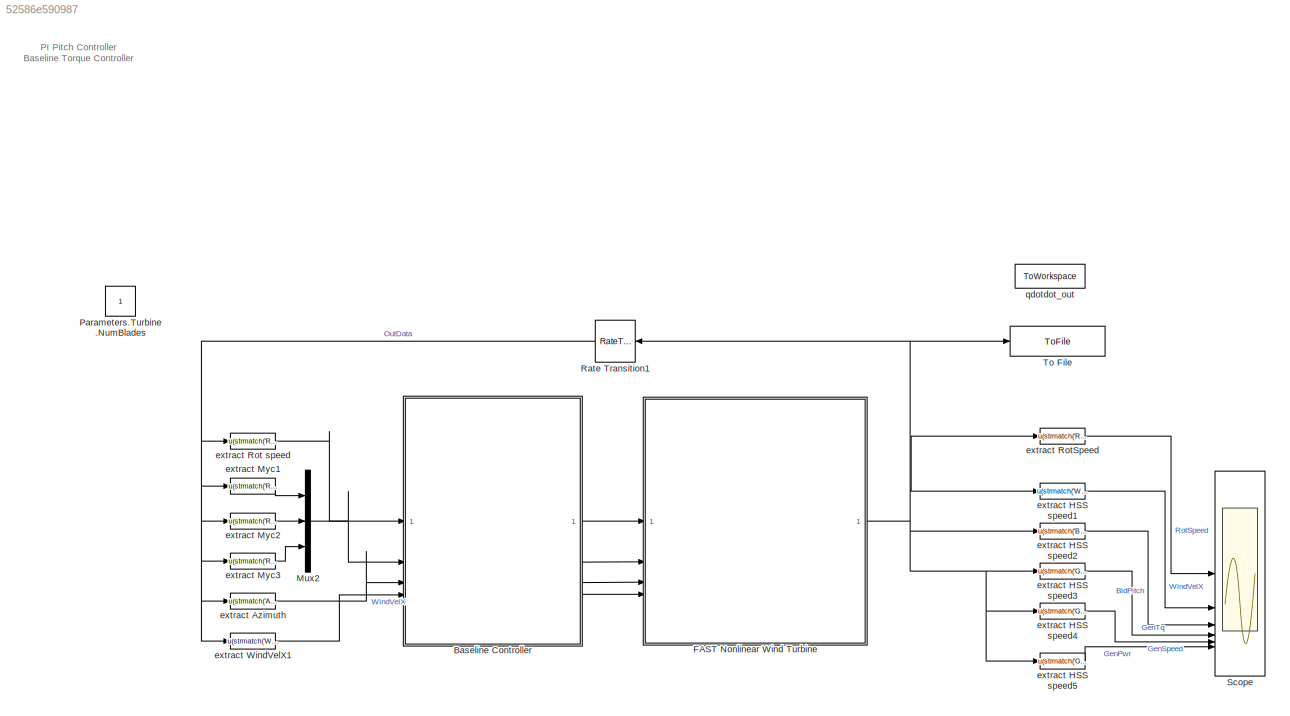
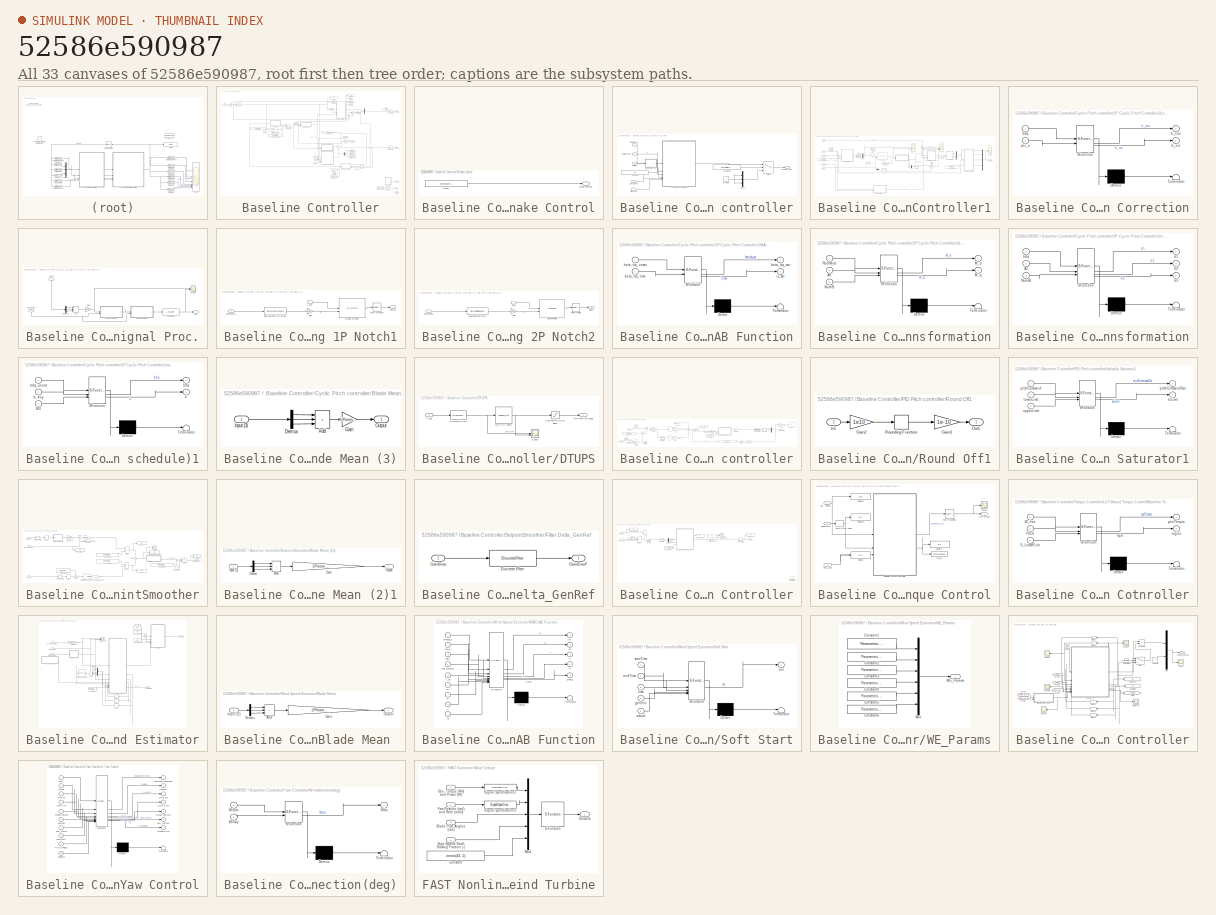
[diagram: thumbnail index - all 33 canvases of the model, root first then tree order]
MODEL slx_52586e590987
KIND model
CONFIG AbsTol = auto
CONFIG EnableMultiTasking = off
CONFIG FixedStep = auto
CONFIG MaxStep = auto
CONFIG MinStep = auto
CONFIG RelTol = 1e-3
CONFIG SampleTimeConstraint = Unconstrained
CONFIG SolverName = ode45
CONFIG StartTime = 0.0
CONFIG StopTime = TMax
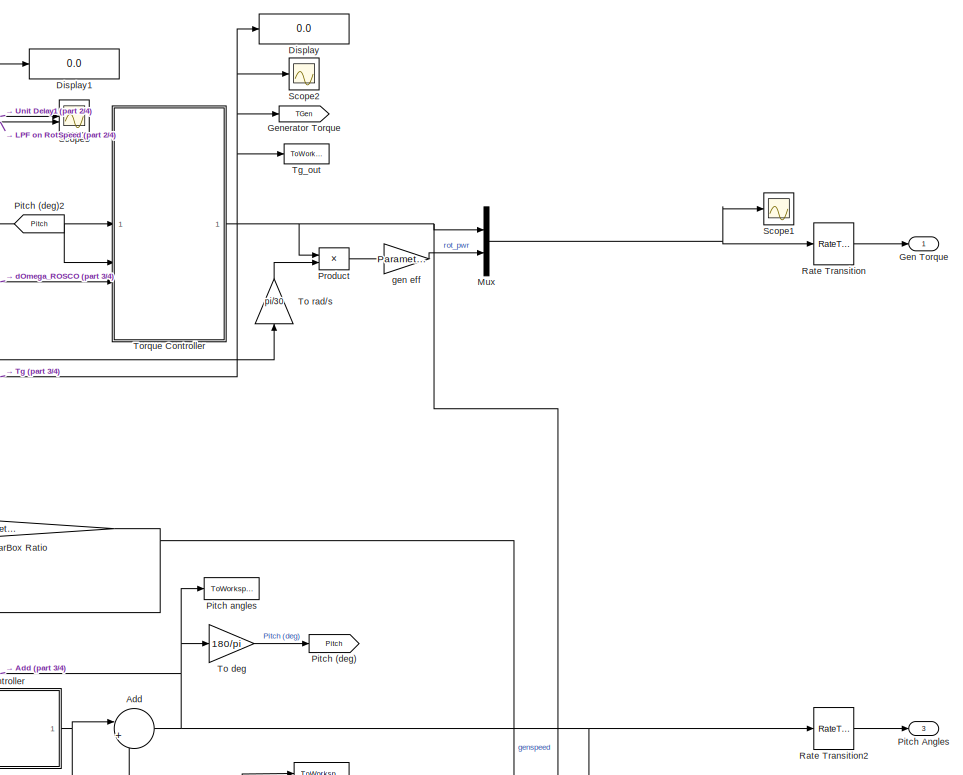
[diagram: Baseline Controller - part 1/4, top right region]
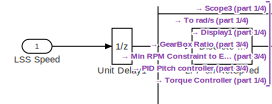
[diagram: Baseline Controller - part 2/4, top left region]
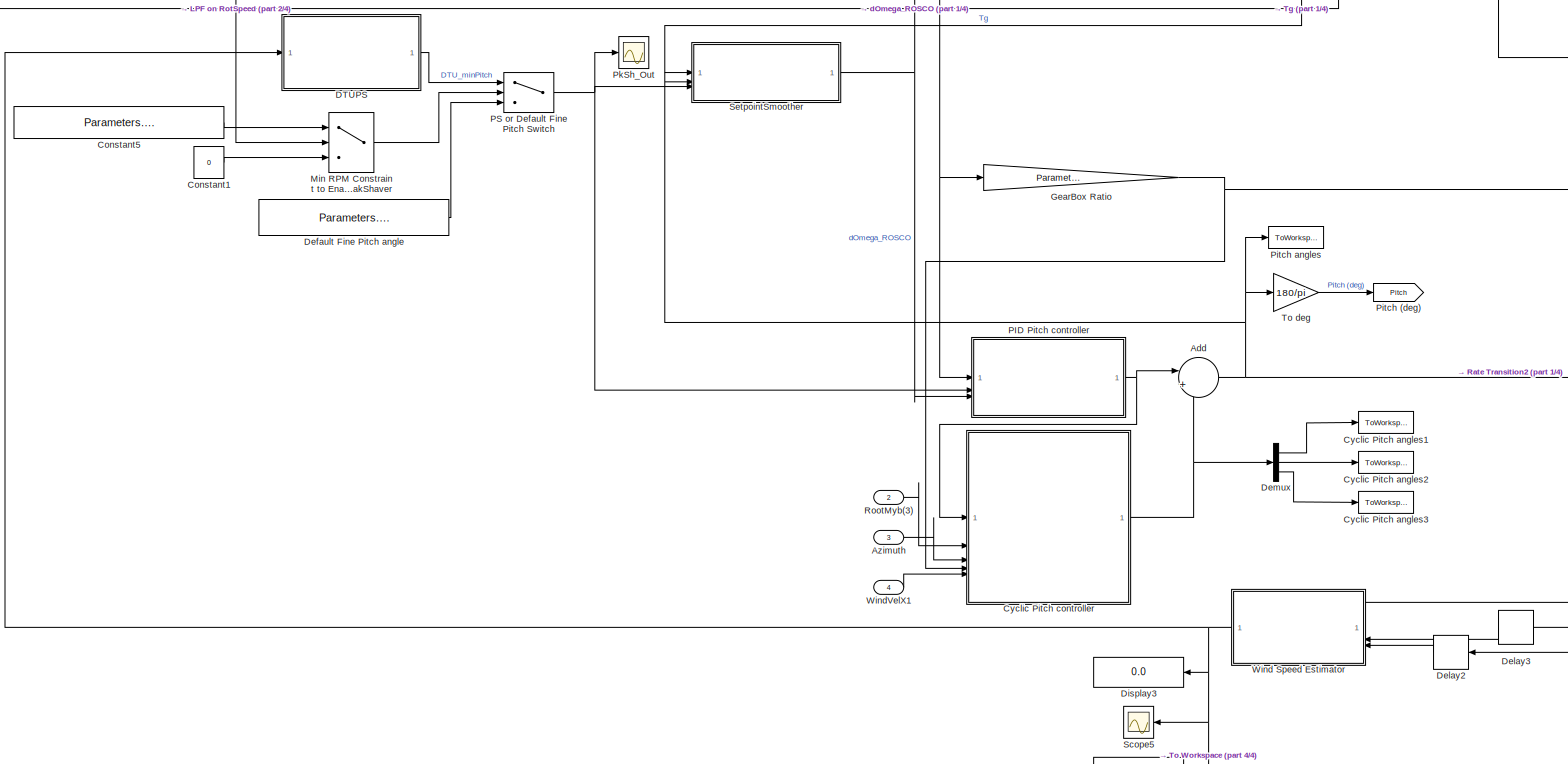
[diagram: Baseline Controller - part 3/4, central region]
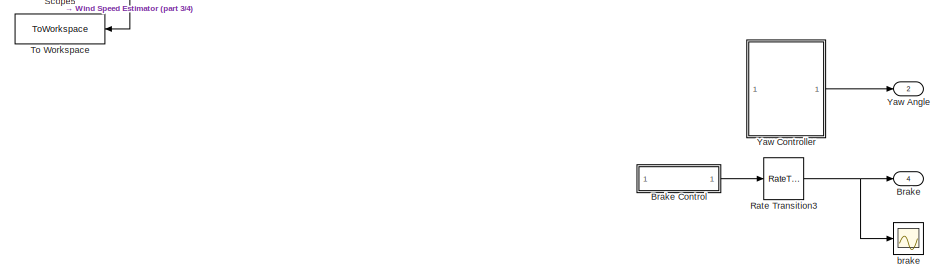
[diagram: Baseline Controller - part 4/4, bottom right region]
BLOCK [SubSystem] Baseline Controller
BLOCK [Sum] Baseline Controller/Add
  Inputs = |++
BLOCK [Inport] Baseline Controller/Azimuth
  Port = 3
BLOCK [Outport] Baseline Controller/Brake
  Port = 4
BLOCK [SubSystem] Baseline Controller/Brake Control
BLOCK [Constant] Baseline Controller/Brake Control/Brake
  Value = Parameters.Turbine.Brake*100
BLOCK [Outport] Baseline Controller/Brake Control/Brake Percent
BLOCK [Constant] Baseline Controller/Constant1
  Value = 0
BLOCK [Constant] Baseline Controller/Constant5
  Value = Parameters.Control.DTU_PS.Enable
BLOCK [ToWorkspace] Baseline Controller/Cyclic Pitch angles1
  Commented = on
  MaxDataPoints = inf
  SampleTime = -1
  VariableName = Cyc_BldPitch1
BLOCK [ToWorkspace] Baseline Controller/Cyclic Pitch angles2
  Commented = on
  MaxDataPoints = inf
  SampleTime = -1
  VariableName = Cyc_BldPitch2
BLOCK [ToWorkspace] Baseline Controller/Cyclic Pitch angles3
  Commented = on
  MaxDataPoints = inf
  SampleTime = -1
  VariableName = Cyc_BldPitch3
BLOCK [SubSystem] Baseline Controller/Cyclic Pitch controller
  MinAlgLoopOccurrences = on
  TreatAsAtomicUnit = on
BLOCK [SubSystem] Baseline Controller/Cyclic Pitch controller/1P Cyclic Pitch Controller1
BLOCK [Gain] Baseline Controller/Cyclic Pitch controller/1P Cyclic Pitch Controller1/ 
  NameLocation = left
BLOCK [Inport] Baseline Controller/Cyclic Pitch controller/1P Cyclic Pitch Controller1/Azimuth (deg)
  Port = 2
BLOCK [Inport] Baseline Controller/Cyclic Pitch controller/1P Cyclic Pitch Controller1/Col. Pitch
  Port = 3
BLOCK [Constant] Baseline Controller/Cyclic Pitch controller/1P Cyclic Pitch Controller1/Constant
  Value = RootMyc_ref
BLOCK [Constant] Baseline Controller/Cyclic Pitch controller/1P Cyclic Pitch Controller1/Constant1
  Value = Parameters.Turbine.NumBlades
BLOCK [Constant] Baseline Controller/Cyclic Pitch controller/1P Cyclic Pitch Controller1/Constant2
  Value = Parameters.Turbine.NumBlades
BLOCK [Constant] Baseline Controller/Cyclic Pitch controller/1P Cyclic Pitch Controller1/Constant3
  Value = BldPitch_sat
BLOCK [Demux] Baseline Controller/Cyclic Pitch controller/1P Cyclic Pitch Controller1/Demux
  NameLocation = right
  Outputs = 2
BLOCK [Display] Baseline Controller/Cyclic Pitch controller/1P Cyclic Pitch Controller1/Display
  Decimation = 1
BLOCK [Inport] Baseline Controller/Cyclic Pitch controller/1P Cyclic Pitch Controller1/Gen Speed
  Port = 5
BLOCK [Outport] Baseline Controller/Cyclic Pitch controller/1P Cyclic Pitch Controller1/IPC Cmd (rad,3)
  VectorParamsAs1DForOutWhenUnconnected = off
BLOCK [Scope] Baseline Controller/Cyclic Pitch controller/1P Cyclic Pitch Controller1/IPC Control
  Floating = off
  NumInputPorts = 3
  ScopeSpecificationString = Simulink.scopes.TimeScopeBlockCfg('CurrentConfiguration', extmgr.ConfigurationSet(extmgr.Configuration('Core','General UI',true),extmgr.Configuration('Core','Source UI',true),extmgr.Configuration('Sources','WiredSimulink',true,'DataLoggingVariableName','ScopeData3'),extmgr.Configuration('Visuals','Time Domain',true,'SerializedDisplays',{struct('MinYLimReal','-220034.84623','MaxYLimReal','252376.71...<+2163ch>
BLOCK [Reference] Baseline Controller/Cyclic Pitch controller/1P Cyclic Pitch Controller1/LPV System  REF=cstblocks/Linear Parameter Varying/LPV System
  SourceBlock = cstblocks/Linear Parameter Varying/LPV System
  SourceType = LPV Block
BLOCK [SubSystem] Baseline Controller/Cyclic Pitch controller/1P Cyclic Pitch Controller1/Lead Correction
  ErrorFcn = Stateflow.Translate.translate
  PermitHierarchicalResolution = ExplicitOnly
  SFBlockType = MATLAB Function
  TreatAsAtomicUnit = on
BLOCK [Demux] Baseline Controller/Cyclic Pitch controller/1P Cyclic Pitch Controller1/Lead Correction/ Demux 
  Outputs = 1
BLOCK [S-Function] Baseline Controller/Cyclic Pitch controller/1P Cyclic Pitch Controller1/Lead Correction/ SFunction 
  EnableBusSupport = on
  FunctionName = sf_sfun
  PortCounts = [2 3]
  SFcnIsStateOwnerBlock = off
  SFunctionDeploymentMode = off
  Tag = Stateflow S-Function 10
BLOCK [Terminator] Baseline Controller/Cyclic Pitch controller/1P Cyclic Pitch Controller1/Lead Correction/ Terminator 
BLOCK [Outport] Baseline Controller/Cyclic Pitch controller/1P Cyclic Pitch Controller1/Lead Correction/b_cos
  VectorParamsAs1DForOutWhenUnconnected = off
BLOCK [Outport] Baseline Controller/Cyclic Pitch controller/1P Cyclic Pitch Controller1/Lead Correction/b_sin
  Port = 2
  VectorParamsAs1DForOutWhenUnconnected = off
BLOCK [Inport] Baseline Controller/Cyclic Pitch controller/1P Cyclic Pitch Controller1/Lead Correction/bdq
BLOCK [Inport] Baseline Controller/Cyclic Pitch controller/1P Cyclic Pitch Controller1/Lead Correction/psi_o
  Port = 2
BLOCK [SubSystem] Baseline Controller/Cyclic Pitch controller/1P Cyclic Pitch Controller1/M0 Signal Proc.
BLOCK [Sum] Baseline Controller/Cyclic Pitch controller/1P Cyclic Pitch Controller1/M0 Signal Proc./Add
  IconShape = rectangular
  Inputs = +++
BLOCK [Demux] Baseline Controller/Cyclic Pitch controller/1P Cyclic Pitch Controller1/M0 Signal Proc./Demux1
  Outputs = 3
BLOCK [Gain] Baseline Controller/Cyclic Pitch controller/1P Cyclic Pitch Controller1/M0 Signal Proc./Gain
  Gain = 1/Parameters.Turbine.NumBlades
BLOCK [Inport] Baseline Controller/Cyclic Pitch controller/1P Cyclic Pitch Controller1/M0 Signal Proc./GenSpeed
  NameLocation = right
  Port = 2
BLOCK [Reference] Baseline Controller/Cyclic Pitch controller/1P Cyclic Pitch Controller1/M0 Signal Proc./LTI System  REF=cstblocks/LTI System
  SourceBlock = cstblocks/LTI System
  SourceType = LTI Block
BLOCK [Outport] Baseline Controller/Cyclic Pitch controller/1P Cyclic Pitch Controller1/M0 Signal Proc./M0
  VectorParamsAs1DForOutWhenUnconnected = off
BLOCK [SubSystem] Baseline Controller/Cyclic Pitch controller/1P Cyclic Pitch Controller1/M0 Signal Proc./Moving 1P Notch1
BLOCK [Gain] Baseline Controller/Cyclic Pitch controller/1P Cyclic Pitch Controller1/M0 Signal Proc./Moving 1P Notch1/Gain
  Gain = 1/Parameters.Turbine.G * rpm2radps(1)
BLOCK [Inport] Baseline Controller/Cyclic Pitch controller/1P Cyclic Pitch Controller1/M0 Signal Proc./Moving 1P Notch1/GenSpeedIN
  Port = 2
BLOCK [Inport] Baseline Controller/Cyclic Pitch controller/1P Cyclic Pitch Controller1/M0 Signal Proc./Moving 1P Notch1/Input
BLOCK [Reference] Baseline Controller/Cyclic Pitch controller/1P Cyclic Pitch Controller1/M0 Signal Proc./Moving 1P Notch1/Moving 2P Filter  REF=cstblocks/Linear Parameter Varying/LPV System
  SourceBlock = cstblocks/Linear Parameter Varying/LPV System
  SourceType = LPV Block
BLOCK [Outport] Baseline Controller/Cyclic Pitch controller/1P Cyclic Pitch Controller1/M0 Signal Proc./Moving 1P Notch1/Output
  VectorParamsAs1DForOutWhenUnconnected = off
BLOCK [RateTransition] Baseline Controller/Cyclic Pitch controller/1P Cyclic Pitch Controller1/M0 Signal Proc./Moving 1P Notch1/Rate Transition
  OutPortSampleTime = DT
BLOCK [DiscreteStateSpace] Baseline Controller/Cyclic Pitch controller/1P Cyclic Pitch Controller1/M0 Signal Proc./Moving 1P Notch1/Slow Low Pass for Param
  A = dLPF_slow.a
  B = dLPF_slow.b
  C = dLPF_slow.c
  D = dLPF_slow.d
  SampleTime = DT
BLOCK [SubSystem] Baseline Controller/Cyclic Pitch controller/1P Cyclic Pitch Controller1/M0 Signal Proc./Moving 2P Notch2
BLOCK [Gain] Baseline Controller/Cyclic Pitch controller/1P Cyclic Pitch Controller1/M0 Signal Proc./Moving 2P Notch2/Gain
  Gain = 1/Parameters.Turbine.G * rpm2radps(1) * 2
BLOCK [Inport] Baseline Controller/Cyclic Pitch controller/1P Cyclic Pitch Controller1/M0 Signal Proc./Moving 2P Notch2/GenSpeedIN
  Port = 2
BLOCK [Inport] Baseline Controller/Cyclic Pitch controller/1P Cyclic Pitch Controller1/M0 Signal Proc./Moving 2P Notch2/Input
BLOCK [Reference] Baseline Controller/Cyclic Pitch controller/1P Cyclic Pitch Controller1/M0 Signal Proc./Moving 2P Notch2/Moving 2P Filter  REF=cstblocks/Linear Parameter Varying/LPV System
  SourceBlock = cstblocks/Linear Parameter Varying/LPV System
  SourceType = LPV Block
BLOCK [Outport] Baseline Controller/Cyclic Pitch controller/1P Cyclic Pitch Controller1/M0 Signal Proc./Moving 2P Notch2/Output
  VectorParamsAs1DForOutWhenUnconnected = off
BLOCK [RateTransition] Baseline Controller/Cyclic Pitch controller/1P Cyclic Pitch Controller1/M0 Signal Proc./Moving 2P Notch2/Rate Transition
  OutPortSampleTime = DT
BLOCK [DiscreteStateSpace] Baseline Controller/Cyclic Pitch controller/1P Cyclic Pitch Controller1/M0 Signal Proc./Moving 2P Notch2/Slow Low Pass for Param
  A = dLPF_slow.a
  B = dLPF_slow.b
  C = dLPF_slow.c
  D = dLPF_slow.d
  SampleTime = DT
BLOCK [Inport] Baseline Controller/Cyclic Pitch controller/1P Cyclic Pitch Controller1/M0 Signal Proc./My1,2
  NameLocation = right
BLOCK [Scope] Baseline Controller/Cyclic Pitch controller/1P Cyclic Pitch Controller1/M0 Signal Proc./Scope
  Floating = off
  NumInputPorts = 2
  ScopeSpecificationString = Simulink.scopes.TimeScopeBlockCfg('CurrentConfiguration', extmgr.ConfigurationSet(extmgr.Configuration('Core','General UI',true),extmgr.Configuration('Core','Source UI',true),extmgr.Configuration('Sources','WiredSimulink',true,'DataLoggingVariableName','ScopeData4'),extmgr.Configuration('Visuals','Time Domain',true,'SerializedDisplays',{struct('MinYLimReal','-331511.06185','MaxYLimReal','282244.34...<+1483ch>
BLOCK [SubSystem] Baseline Controller/Cyclic Pitch controller/1P Cyclic Pitch Controller1/MATLAB Function
  ErrorFcn = Stateflow.Translate.translate
  PermitHierarchicalResolution = ExplicitOnly
  SFBlockType = MATLAB Function
  TreatAsAtomicUnit = on
BLOCK [Demux] Baseline Controller/Cyclic Pitch controller/1P Cyclic Pitch Controller1/MATLAB Function/ Demux 
  Outputs = 1
BLOCK [S-Function] Baseline Controller/Cyclic Pitch controller/1P Cyclic Pitch Controller1/MATLAB Function/ SFunction 
  EnableBusSupport = off
  FunctionName = sf_sfun
  PortCounts = [2 3]
  SFcnIsStateOwnerBlock = off
  SFunctionDeploymentMode = off
  Tag = Stateflow S-Function 2
BLOCK [Terminator] Baseline Controller/Cyclic Pitch controller/1P Cyclic Pitch Controller1/MATLAB Function/ Terminator 
BLOCK [Inport] Baseline Controller/Cyclic Pitch controller/1P Cyclic Pitch Controller1/MATLAB Function/beta_dq_lims
  Port = 2
BLOCK [Outport] Baseline Controller/Cyclic Pitch controller/1P Cyclic Pitch Controller1/MATLAB Function/beta_dq_sat
BLOCK [Inport] Baseline Controller/Cyclic Pitch controller/1P Cyclic Pitch Controller1/MATLAB Function/beta_dq_unsat
BLOCK [Outport] Baseline Controller/Cyclic Pitch controller/1P Cyclic Pitch Controller1/MATLAB Function/is_sat
  Port = 2
BLOCK [Scope] Baseline Controller/Cyclic Pitch controller/1P Cyclic Pitch Controller1/MBC Out
  Floating = off
  NumInputPorts = 2
  ScopeSpecificationString = Simulink.scopes.TimeScopeBlockCfg('CurrentConfiguration', extmgr.ConfigurationSet(extmgr.Configuration('Core','General UI',true),extmgr.Configuration('Core','Source UI',true),extmgr.Configuration('Sources','WiredSimulink',true,'DataLoggingVariableName','ScopeData1'),extmgr.Configuration('Visuals','Time Domain',true,'SerializedDisplays',{struct('MinYLimReal','-0.22146','MaxYLimReal','0.24609','YLab...<+2172ch>
BLOCK [Scope] Baseline Controller/Cyclic Pitch controller/1P Cyclic Pitch Controller1/MBCIPC1
  Floating = off
  NumInputPorts = 1
  ScopeSpecificationString = Simulink.scopes.TimeScopeBlockCfg('CurrentConfiguration', extmgr.ConfigurationSet(extmgr.Configuration('Core','General UI',true),extmgr.Configuration('Core','Source UI',true),extmgr.Configuration('Sources','WiredSimulink',true,'DataLoggingVariableName','ScopeData1'),extmgr.Configuration('Visuals','Time Domain',true,'SerializedDisplays',{struct('MinYLimReal','-34650.71704','MaxYLimReal','82328.9338...<+2037ch>
BLOCK [Scope] Baseline Controller/Cyclic Pitch controller/1P Cyclic Pitch Controller1/MBCIPC2
  Floating = off
  NumInputPorts = 2
  ScopeSpecificationString = Simulink.scopes.TimeScopeBlockCfg('CurrentConfiguration', extmgr.ConfigurationSet(extmgr.Configuration('Core','General UI',true),extmgr.Configuration('Core','Source UI',true),extmgr.Configuration('Sources','WiredSimulink',true,'DataLoggingVariableName','ScopeData2'),extmgr.Configuration('Visuals','Time Domain',true,'SerializedDisplays',{struct('MinYLimReal','-172713.79513','MaxYLimReal','252981.23...<+1530ch>
BLOCK [Mux] Baseline Controller/Cyclic Pitch controller/1P Cyclic Pitch Controller1/Mux
  DisplayOption = bar
  Inputs = 2
BLOCK [Mux] Baseline Controller/Cyclic Pitch controller/1P Cyclic Pitch Controller1/Mux1
  DisplayOption = bar
  Inputs = 2
  NameLocation = top
BLOCK [Mux] Baseline Controller/Cyclic Pitch controller/1P Cyclic Pitch Controller1/Mux4
  DisplayOption = bar
  Inputs = 3
  NameLocation = top
BLOCK [Mux] Baseline Controller/Cyclic Pitch controller/1P Cyclic Pitch Controller1/Mux5
  DisplayOption = bar
  Inputs = 2
  NameLocation = top
BLOCK [Inport] Baseline Controller/Cyclic Pitch controller/1P Cyclic Pitch Controller1/Phase (deg)
  Port = 4
BLOCK [Inport] Baseline Controller/Cyclic Pitch controller/1P Cyclic Pitch Controller1/RootMyb
BLOCK [Scope] Baseline Controller/Cyclic Pitch controller/1P Cyclic Pitch Controller1/Scope
  Floating = off
  NumInputPorts = 4
  ScopeSpecificationString = Simulink.scopes.TimeScopeBlockCfg('CurrentConfiguration', extmgr.ConfigurationSet(extmgr.Configuration('Core','General UI',true),extmgr.Configuration('Core','Source UI',true),extmgr.Configuration('Sources','WiredSimulink',true,'DataLoggingVariableName','ScopeData3'),extmgr.Configuration('Visuals','Time Domain',true,'SerializedDisplays',{struct('MinYLimReal','-0.34556','MaxYLimReal','0.29223','YLab...<+3383ch>
BLOCK [Sum] Baseline Controller/Cyclic Pitch controller/1P Cyclic Pitch Controller1/Sum
  Inputs = +-|
BLOCK [Sum] Baseline Controller/Cyclic Pitch controller/1P Cyclic Pitch Controller1/Sum9
  Inputs = -|+
  NameLocation = left
BLOCK [ToFile] Baseline Controller/Cyclic Pitch controller/1P Cyclic Pitch Controller1/To File
  MatrixName = BlPitch
BLOCK [Inport] Baseline Controller/Cyclic Pitch controller/1P Cyclic Pitch Controller1/WindVelX1
  Port = 6
BLOCK [ZeroOrderHold] Baseline Controller/Cyclic Pitch controller/1P Cyclic Pitch Controller1/Zero-Order Hold
  SampleTime = DT
BLOCK [SubSystem] Baseline Controller/Cyclic Pitch controller/1P Cyclic Pitch Controller1/d-q transformation
  ErrorFcn = Stateflow.Translate.translate
  PermitHierarchicalResolution = ExplicitOnly
  SFBlockType = MATLAB Function
  TreatAsAtomicUnit = on
BLOCK [Demux] Baseline Controller/Cyclic Pitch controller/1P Cyclic Pitch Controller1/d-q transformation/ Demux 
  Outputs = 1
BLOCK [S-Function] Baseline Controller/Cyclic Pitch controller/1P Cyclic Pitch Controller1/d-q transformation/ SFunction 
  EnableBusSupport = on
  FunctionName = sf_sfun
  PortCounts = [3 3]
  SFcnIsStateOwnerBlock = off
  SFunctionDeploymentMode = off
  Tag = Stateflow S-Function 25
BLOCK [Terminator] Baseline Controller/Cyclic Pitch controller/1P Cyclic Pitch Controller1/d-q transformation/ Terminator 
BLOCK [Inport] Baseline Controller/Cyclic Pitch controller/1P Cyclic Pitch Controller1/d-q transformation/Az
  Port = 2
BLOCK [Outport] Baseline Controller/Cyclic Pitch controller/1P Cyclic Pitch Controller1/d-q transformation/M_d
  VectorParamsAs1DForOutWhenUnconnected = off
BLOCK [Outport] Baseline Controller/Cyclic Pitch controller/1P Cyclic Pitch Controller1/d-q transformation/M_q
  Port = 2
  VectorParamsAs1DForOutWhenUnconnected = off
BLOCK [Inport] Baseline Controller/Cyclic Pitch controller/1P Cyclic Pitch Controller1/d-q transformation/NumBl
  Port = 3
BLOCK [Inport] Baseline Controller/Cyclic Pitch controller/1P Cyclic Pitch Controller1/d-q transformation/RootMyb
BLOCK [SubSystem] Baseline Controller/Cyclic Pitch controller/1P Cyclic Pitch Controller1/inverse d-q transformation
  ErrorFcn = Stateflow.Translate.translate
  PermitHierarchicalResolution = ExplicitOnly
  SFBlockType = MATLAB Function
  TreatAsAtomicUnit = on
BLOCK [Demux] Baseline Controller/Cyclic Pitch controller/1P Cyclic Pitch Controller1/inverse d-q transformation/ Demux 
  Outputs = 1
BLOCK [S-Function] Baseline Controller/Cyclic Pitch controller/1P Cyclic Pitch Controller1/inverse d-q transformation/ SFunction 
  EnableBusSupport = on
  FunctionName = sf_sfun
  PortCounts = [3 4]
  SFcnIsStateOwnerBlock = off
  SFunctionDeploymentMode = off
  Tag = Stateflow S-Function 26
BLOCK [Terminator] Baseline Controller/Cyclic Pitch controller/1P Cyclic Pitch Controller1/inverse d-q transformation/ Terminator 
BLOCK [Inport] Baseline Controller/Cyclic Pitch controller/1P Cyclic Pitch Controller1/inverse d-q transformation/Az
  Port = 2
BLOCK [Inport] Baseline Controller/Cyclic Pitch controller/1P Cyclic Pitch Controller1/inverse d-q transformation/NumBl
  Port = 3
BLOCK [Outport] Baseline Controller/Cyclic Pitch controller/1P Cyclic Pitch Controller1/inverse d-q transformation/b1
  VectorParamsAs1DForOutWhenUnconnected = off
BLOCK [Outport] Baseline Controller/Cyclic Pitch controller/1P Cyclic Pitch Controller1/inverse d-q transformation/b2
  Port = 2
  VectorParamsAs1DForOutWhenUnconnected = off
BLOCK [Outport] Baseline Controller/Cyclic Pitch controller/1P Cyclic Pitch Controller1/inverse d-q transformation/b3
  Port = 3
  VectorParamsAs1DForOutWhenUnconnected = off
BLOCK [Inport] Baseline Controller/Cyclic Pitch controller/1P Cyclic Pitch Controller1/inverse d-q transformation/bdq
BLOCK [SubSystem] Baseline Controller/Cyclic Pitch controller/1P Cyclic Pitch Controller1/saturation (limit schedule)1
  ErrorFcn = Stateflow.Translate.translate
  PermitHierarchicalResolution = ExplicitOnly
  SFBlockType = MATLAB Function
  TreatAsAtomicUnit = on
BLOCK [Demux] Baseline Controller/Cyclic Pitch controller/1P Cyclic Pitch Controller1/saturation (limit schedule)1/ Demux 
  Outputs = 1
BLOCK [S-Function] Baseline Controller/Cyclic Pitch controller/1P Cyclic Pitch Controller1/saturation (limit schedule)1/ SFunction 
  EnableBusSupport = on
  FunctionName = sf_sfun
  Parameters = PitchControlParams
  PortCounts = [3 3]
  SFcnIsStateOwnerBlock = off
  SFunctionDeploymentMode = off
  Tag = Stateflow S-Function 27
BLOCK [Terminator] Baseline Controller/Cyclic Pitch controller/1P Cyclic Pitch Controller1/saturation (limit schedule)1/ Terminator 
BLOCK [Inport] Baseline Controller/Cyclic Pitch controller/1P Cyclic Pitch Controller1/saturation (limit schedule)1/M0
  Port = 3
BLOCK [Inport] Baseline Controller/Cyclic Pitch controller/1P Cyclic Pitch Controller1/saturation (limit schedule)1/b_avg
  Port = 2
BLOCK [Outport] Baseline Controller/Cyclic Pitch controller/1P Cyclic Pitch Controller1/saturation (limit schedule)1/bdq
  VectorParamsAs1DForOutWhenUnconnected = off
BLOCK [Inport] Baseline Controller/Cyclic Pitch controller/1P Cyclic Pitch Controller1/saturation (limit schedule)1/bdq_unsat
BLOCK [Outport] Baseline Controller/Cyclic Pitch controller/1P Cyclic Pitch Controller1/saturation (limit schedule)1/k
  Port = 2
  VectorParamsAs1DForOutWhenUnconnected = off
BLOCK [Constant] Baseline Controller/Cyclic Pitch controller/1P Phase
  Value = 35
BLOCK [Inport] Baseline Controller/Cyclic Pitch controller/Azimuth (deg)
  Port = 3
BLOCK [SubSystem] Baseline Controller/Cyclic Pitch controller/Blade Mean (3)
BLOCK [Sum] Baseline Controller/Cyclic Pitch controller/Blade Mean (3)/Add
  IconShape = rectangular
  Inputs = +++
BLOCK [Demux] Baseline Controller/Cyclic Pitch controller/Blade Mean (3)/Demux
  Outputs = 3
BLOCK [Gain] Baseline Controller/Cyclic Pitch controller/Blade Mean (3)/Gain
  Gain = 1/Parameters.Turbine.NumBlades
BLOCK [Inport] Baseline Controller/Cyclic Pitch controller/Blade Mean (3)/Input (3)
BLOCK [Outport] Baseline Controller/Cyclic Pitch controller/Blade Mean (3)/Output
  VectorParamsAs1DForOutWhenUnconnected = off
BLOCK [Inport] Baseline Controller/Cyclic Pitch controller/Coll. Pitch
BLOCK [Constant] Baseline Controller/Cyclic Pitch controller/Constant
  Value = 0
BLOCK [Constant] Baseline Controller/Cyclic Pitch controller/Constant1
  Value = Parameters.Control.IPCDQ.Enable
BLOCK [Inport] Baseline Controller/Cyclic Pitch controller/Gen Speed
  Port = 4
BLOCK [Outport] Baseline Controller/Cyclic Pitch controller/IPC Cmd (rad,3)
  VectorParamsAs1DForOutWhenUnconnected = off
BLOCK [Mux] Baseline Controller/Cyclic Pitch controller/Mux1
  DisplayOption = bar
  Inputs = 3
BLOCK [Inport] Baseline Controller/Cyclic Pitch controller/RootMyb (3)
  Port = 2
BLOCK [Switch] Baseline Controller/Cyclic Pitch controller/Switch
  Criteria = u2 > Threshold
  InputSameDT = off
  SaturateOnIntegerOverflow = off
  Threshold = 1/2
BLOCK [Inport] Baseline Controller/Cyclic Pitch controller/WindVelX1
  Port = 5
BLOCK [SubSystem] Baseline Controller/DTUPS
BLOCK [Lookup_n-D] Baseline Controller/DTUPS/DTU PS Table
  BreakpointsForDimension1 = Parameters.Control.DTU_PS.uu
  ExtrapMethod = Clip
  InputPortMap = u0
  InternalRulePriority = Speed
  NumberOfTableDimensions = 1
  RndMeth = Simplest
  Table = Parameters.Control.DTU_PS.pp
BLOCK [DiscreteFilter] Baseline Controller/DTUPS/Discrete Filter1
  Denominator = Parameters.Control.DTU_PS.TB_LPF.den{1}
  InputPortMap = u0
  Numerator = Parameters.Control.DTU_PS.TB_LPF.num{1}
BLOCK [Saturate] Baseline Controller/DTUPS/Saturation 0 to 90 deg5
  LowerLimit = Parameters.Turbine.fine_pitch
  UpperLimit = 90
BLOCK [Scope] Baseline Controller/DTUPS/Scope
  Floating = off
  NumInputPorts = 2
  ScopeSpecificationString = Simulink.scopes.TimeScopeBlockCfg('CurrentConfiguration', extmgr.ConfigurationSet(extmgr.Configuration('Core','General UI',true),extmgr.Configuration('Core','Source UI',true),extmgr.Configuration('Sources','WiredSimulink',true,'DataLoggingVariableName','ScopeData1'),extmgr.Configuration('Visuals','Time Domain',true,'SerializedDisplays',{struct('MinYLimReal','-3.01304','MaxYLimReal','27.11739','YLa...<+1993ch>
BLOCK [Inport] Baseline Controller/DTUPS/U_est
BLOCK [Outport] Baseline Controller/DTUPS/minfinePitch (deg)
  VectorParamsAs1DForOutWhenUnconnected = off
BLOCK [Constant] Baseline Controller/Default Fine Pitch angle
  Value = Parameters.Turbine.fine_pitch
BLOCK [Delay] Baseline Controller/Delay2
  DelayLength = 1
  InputPortMap = u0
  SampleTime = Control.DT
BLOCK [Delay] Baseline Controller/Delay3
  DelayLength = 1
  InputPortMap = u0
  SampleTime = Control.DT
BLOCK [Demux] Baseline Controller/Demux
  Outputs = 3
BLOCK [Display] Baseline Controller/Display
  Decimation = 1
BLOCK [Display] Baseline Controller/Display1
  Decimation = 1
BLOCK [Display] Baseline Controller/Display3
  Decimation = 1
BLOCK [Gain] Baseline Controller/GearBox Ratio
  Gain = Parameters.Turbine.G
BLOCK [Outport] Baseline Controller/Gen Torque
BLOCK [Goto] Baseline Controller/Generator Torque
  GotoTag = TGen
  TagVisibility = global
BLOCK [Reference] Baseline Controller/LPF on RotSpeed  REF=simulink_extras/Additional
Discrete/Discrete
Transfer Fcn
(with initial outputs)
  SourceBlock = simulink_extras/Additional\nDiscrete/Discrete\nTransfer Fcn\n(with initial outputs)
  SourceType = Discrete Transfer Function with Initial Outputs
BLOCK [Inport] Baseline Controller/LSS Speed
BLOCK [Switch] Baseline Controller/Min RPM Constraint to Enable PeakShaver
  Criteria = u2 > Threshold
  InputSameDT = off
  SaturateOnIntegerOverflow = off
  Threshold = 4.5
BLOCK [Mux] Baseline Controller/Mux
  DisplayOption = bar
  Inputs = 2
BLOCK [SubSystem] Baseline Controller/PID Pitch controller
  MinAlgLoopOccurrences = on
  NameLocation = top
BLOCK [Outport] Baseline Controller/PID Pitch controller/Blade Pitch (rad)
BLOCK [Reference] Baseline Controller/PID Pitch controller/Compare To Zero1  REF=simulink/Logic and Bit
Operations/Compare
To Zero
  SourceBlock = simulink/Logic and Bit\nOperations/Compare\nTo Zero
  SourceType = Compare To Zero
BLOCK [Constant] Baseline Controller/PID Pitch controller/Constant3
  Value = deg2rad(90)
BLOCK [DiscreteIntegrator] Baseline Controller/PID Pitch controller/Discrete-Time Integrator
  ICPrevOutput = DiscIntNeverNeededParam
  ICPrevScaledInput = DiscIntNeverNeededParam
  InitialCondition = deg2rad(Parameters.Turbine.fine_pitch)/(PitchControlParams.Ki_0)/(1./(1.+deg2rad(Parameters.Turbine.fine_pitch)/PitchControlParams.theta_k))
  IntegratorMethod = Integration: Backward Euler
  LimitOutput = on
  LowerSaturationLimit = deg2rad(Parameters.Turbine.fine_pitch)/(PitchControlParams.Ki_0)/(1./(1.+deg2rad(Parameters.Turbine.fine_pitch)/PitchControlParams.theta_k))
  SampleTime = Control.DT
  UpperSaturationLimit = 5*1.570796/(PitchControlParams.Ki_0)/(1./(1.+1.570796/PitchControlParams.theta_k))
  gainval = 1
BLOCK [Display] Baseline Controller/PID Pitch controller/Display
  Decimation = 1
BLOCK [Display] Baseline Controller/PID Pitch controller/Display1
  Decimation = 1
BLOCK [Display] Baseline Controller/PID Pitch controller/Display11
  Decimation = 1
BLOCK [Display] Baseline Controller/PID Pitch controller/Display8
  Decimation = 1
BLOCK [Inport] Baseline Controller/PID Pitch controller/Fine Pitch (deg)
  Port = 2
BLOCK [Fcn] Baseline Controller/PID Pitch controller/GK1
  Expr = 1./(1.+u/deg2rad(PitchControlParams.theta_k))
BLOCK [Gain] Baseline Controller/PID Pitch controller/Gain
  Gain = PitchControlParams.Kp_0
BLOCK [Gain] Baseline Controller/PID Pitch controller/Gain1
  Gain = PitchControlParams.Ki_0
BLOCK [Gain] Baseline Controller/PID Pitch controller/Gain2
  Gain = 180/pi
BLOCK [Gain] Baseline Controller/PID Pitch controller/Gain4
  Gain = rpm2radps(1)
BLOCK [Product] Baseline Controller/PID Pitch controller/Multiply3
BLOCK [Mux] Baseline Controller/PID Pitch controller/Mux1
  DisplayOption = bar
  Inputs = 3
BLOCK [TransferFcn] Baseline Controller/PID Pitch controller/Pitch Actuator1
  Denominator = [Parameters.PitchActuator.TF_den]
  Numerator = Parameters.PitchActuator.TF_num
BLOCK [Constant] Baseline Controller/PID Pitch controller/Pitch_op1
  NameLocation = top
  SampleTime = Control.DT
  Value = 0
BLOCK [Constant] Baseline Controller/PID Pitch controller/Pitch_op2
  NameLocation = top
  SampleTime = Control.DT
  Value = Parameters.Turbine.wr_rated
BLOCK [Product] Baseline Controller/PID Pitch controller/Product1
  RndMeth = Zero
BLOCK [RateLimiter] Baseline Controller/PID Pitch controller/Rate Limiter
  Commented = through
  FallingSlewLimit = - 2.5*pi/180
  InitialCondition = deg2rad(0)
  RisingSlewLimit = 2.5*pi/180
  SampleTimeMode = inherited
BLOCK [Inport] Baseline Controller/PID Pitch controller/RotSpeed
BLOCK [SubSystem] Baseline Controller/PID Pitch controller/Round Off1
BLOCK [Gain] Baseline Controller/PID Pitch controller/Round Off1/Gain2
  Gain = 1e10
BLOCK [Gain] Baseline Controller/PID Pitch controller/Round Off1/Gain3
  Gain = 1e-10
BLOCK [Inport] Baseline Controller/PID Pitch controller/Round Off1/In1
BLOCK [Outport] Baseline Controller/PID Pitch controller/Round Off1/Out1
BLOCK [Rounding] Baseline Controller/PID Pitch controller/Round Off1/Rounding Function
  Operator = round
BLOCK [Sum] Baseline Controller/PID Pitch controller/Sum1
  Inputs = +++
BLOCK [Sum] Baseline Controller/PID Pitch controller/Sum3
  InputSameDT = on
  Inputs = |+-
  OutDataTypeStr = Inherit: Same as first input
  SaturateOnIntegerOverflow = on
BLOCK [Sum] Baseline Controller/PID Pitch controller/Sum5
  InputSameDT = on
  Inputs = |+-
  OutDataTypeStr = Inherit: Same as first input
  SaturateOnIntegerOverflow = on
BLOCK [UnitDelay] Baseline Controller/PID Pitch controller/Unit Delay1
  HasFrameUpgradeWarning = on
  InitialCondition = Parameters.Turbine.IC.Wg
  NameLocation = top
  SampleTime = Control.DT
BLOCK [SubSystem] Baseline Controller/PID Pitch controller/Variable Saturator1
  ErrorFcn = Stateflow.Translate.translate
  PermitHierarchicalResolution = ExplicitOnly
  SFBlockType = MATLAB Function
  TreatAsAtomicUnit = on
BLOCK [Demux] Baseline Controller/PID Pitch controller/Variable Saturator1/ Demux 
  Outputs = 1
BLOCK [S-Function] Baseline Controller/PID Pitch controller/Variable Saturator1/ SFunction 
  EnableBusSupport = on
  FunctionName = sf_sfun
  PortCounts = [3 3]
  SFcnIsStateOwnerBlock = off
  SFunctionDeploymentMode = off
  Tag = Stateflow S-Function 7
BLOCK [Terminator] Baseline Controller/PID Pitch controller/Variable Saturator1/ Terminator 
BLOCK [Outport] Baseline Controller/PID Pitch controller/Variable Saturator1/atLimit
  Port = 2
  VectorParamsAs1DForOutWhenUnconnected = off
BLOCK [Inport] Baseline Controller/PID Pitch controller/Variable Saturator1/lowerLimit
  Port = 2
BLOCK [Inport] Baseline Controller/PID Pitch controller/Variable Saturator1/pitchCommand
BLOCK [Outport] Baseline Controller/PID Pitch controller/Variable Saturator1/pitchCommandOut
  VectorParamsAs1DForOutWhenUnconnected = off
BLOCK [Inport] Baseline Controller/PID Pitch controller/Variable Saturator1/upperLimit
  Port = 3
BLOCK [ZeroOrderHold] Baseline Controller/PID Pitch controller/Zero-Order Hold1
  SampleTime = Control.DT
BLOCK [Scope] Baseline Controller/PID Pitch controller/dOmega<0
  Floating = off
  NumInputPorts = 1
  ScopeSpecificationString = Simulink.scopes.TimeScopeBlockCfg('CurrentConfiguration', extmgr.ConfigurationSet(extmgr.Configuration('Core','General UI',true),extmgr.Configuration('Core','Source UI',true),extmgr.Configuration('Sources','WiredSimulink',true,'DataLoggingVariableName','ScopeData4'),extmgr.Configuration('Visuals','Time Domain',true,'SerializedDisplays',{struct('MinYLimReal','-21.31448','MaxYLimReal','2.36828','YLa...<+1423ch>
BLOCK [Inport] Baseline Controller/PID Pitch controller/dOmegaRPM
  Port = 3
BLOCK [Gain] Baseline Controller/PID Pitch controller/deg2rad
  Gain = pi/180
BLOCK [Switch] Baseline Controller/PS or Default Fine Pitch Switch
  Criteria = u2 > Threshold
  InputSameDT = off
  SaturateOnIntegerOverflow = off
  Threshold = 0.5
BLOCK [Goto] Baseline Controller/Pitch (deg)
  GotoTag = Pitch
BLOCK [From] Baseline Controller/Pitch (deg)2
  CloseFcn = tagdialog Close
  GotoTag = Pitch
BLOCK [Outport] Baseline Controller/Pitch Angles
  Port = 3
BLOCK [ToWorkspace] Baseline Controller/Pitch angles 
  Commented = on
  MaxDataPoints = inf
  SampleTime = -1
  VariableName = theta_out
BLOCK [Scope] Baseline Controller/PkSh_Out
  Floating = off
  NumInputPorts = 1
  ScopeSpecificationString = Simulink.scopes.TimeScopeBlockCfg('CurrentConfiguration', extmgr.ConfigurationSet(extmgr.Configuration('Core','General UI',true),extmgr.Configuration('Core','Source UI',true),extmgr.Configuration('Sources','WiredSimulink',true,'DataLoggingVariableName','ScopeData1'),extmgr.Configuration('Visuals','Time Domain',true,'SerializedDisplays',{struct('MinYLimReal','-18.75','MaxYLimReal','18.75','YLabelRe...<+1443ch>
BLOCK [Product] Baseline Controller/Product
  RndMeth = Zero
BLOCK [RateTransition] Baseline Controller/Rate Transition
  InitialCondition = [0,0]
BLOCK [RateTransition] Baseline Controller/Rate Transition2
  InitialCondition = deg2rad(0)
BLOCK [RateTransition] Baseline Controller/Rate Transition3
BLOCK [Inport] Baseline Controller/RootMyb(3)
  Port = 2
BLOCK [Scope] Baseline Controller/Scope1
  Floating = off
  NumInputPorts = 1
  ScopeSpecificationString = Simulink.scopes.TimeScopeBlockCfg('CurrentConfiguration', extmgr.ConfigurationSet(extmgr.Configuration('Core','General UI',true),extmgr.Configuration('Core','Source UI',true),extmgr.Configuration('Sources','WiredSimulink',true,'DataLoggingVariableName','ScopeData3'),extmgr.Configuration('Visuals','Time Domain',true,'SerializedDisplays',{struct('MinYLimReal','-5027.30736','MaxYLimReal','45245.76622...<+1397ch>
BLOCK [Scope] Baseline Controller/Scope2
  Floating = off
  NumInputPorts = 1
  ScopeSpecificationString = Simulink.scopes.TimeScopeBlockCfg('CurrentConfiguration', extmgr.ConfigurationSet(extmgr.Configuration('Core','General UI',true),extmgr.Configuration('Core','Source UI',true),extmgr.Configuration('Sources','WiredSimulink',true,'DataLoggingVariableName','ScopeData4'),extmgr.Configuration('Visuals','Time Domain',true,'SerializedDisplays',{struct('MinYLimReal','-6490345.4125','MaxYLimReal','58413108....<+2059ch>
BLOCK [Scope] Baseline Controller/Scope3
  Floating = off
  NumInputPorts = 2
  ScopeSpecificationString = Simulink.scopes.TimeScopeBlockCfg('CurrentConfiguration', extmgr.ConfigurationSet(extmgr.Configuration('Core','General UI',true),extmgr.Configuration('Core','Source UI',true),extmgr.Configuration('Sources','WiredSimulink',true,'DataLoggingVariableName','ScopeData2'),extmgr.Configuration('Visuals','Time Domain',true,'SerializedDisplays',{struct('MinYLimReal','2.4751','MaxYLimReal','2.61664','YLabel...<+2096ch>
BLOCK [Scope] Baseline Controller/Scope5
  Floating = off
  NumInputPorts = 1
  ScopeSpecificationString = Simulink.scopes.TimeScopeBlockCfg('CurrentConfiguration', extmgr.ConfigurationSet(extmgr.Configuration('Core','General UI',true),extmgr.Configuration('Core','Source UI',true),extmgr.Configuration('Sources','WiredSimulink',true,'DataLoggingVariableName','ScopeData2'),extmgr.Configuration('Visuals','Time Domain',true,'SerializedDisplays',{struct('MinYLimReal','9.53701','MaxYLimReal','16.71057','YLab...<+1431ch>
BLOCK [SubSystem] Baseline Controller/SetpointSmoother
BLOCK [SubSystem] Baseline Controller/SetpointSmoother/Blade Mean (2)1
BLOCK [Sum] Baseline Controller/SetpointSmoother/Blade Mean (2)1/Add
  IconShape = rectangular
  Inputs = +++
BLOCK [Demux] Baseline Controller/SetpointSmoother/Blade Mean (2)1/Demux
  Outputs = 3
BLOCK [Gain] Baseline Controller/SetpointSmoother/Blade Mean (2)1/Gain
  Gain = 1/Parameters.Turbine.NumBlades
BLOCK [Inport] Baseline Controller/SetpointSmoother/Blade Mean (2)1/Input (2)
BLOCK [Outport] Baseline Controller/SetpointSmoother/Blade Mean (2)1/Output
  VectorParamsAs1DForOutWhenUnconnected = off
BLOCK [Inport] Baseline Controller/SetpointSmoother/BldPitch
  Port = 2
BLOCK [Constant] Baseline Controller/SetpointSmoother/Constant1
  Value = Parameters.Control.SetSmooth.g_2
BLOCK [Constant] Baseline Controller/SetpointSmoother/Constant2
  Value = Parameters.Turbine.T_rated
BLOCK [Constant] Baseline Controller/SetpointSmoother/Constant3
  Value = Parameters.Control.SetSmooth.g_1
BLOCK [Constant] Baseline Controller/SetpointSmoother/Constant4
  Value = 0
BLOCK [Constant] Baseline Controller/SetpointSmoother/Constant5
  Value = Parameters.Control.SetSmooth.Enable
BLOCK [Outport] Baseline Controller/SetpointSmoother/Del_Omega_g
  VectorParamsAs1DForOutWhenUnconnected = off
BLOCK [Display] Baseline Controller/SetpointSmoother/Del_omega_g
  Decimation = 1
BLOCK [Delay] Baseline Controller/SetpointSmoother/Delay
  DelayLength = 1
  InitialCondition = Parameters.Turbine.T_rated
  InputPortMap = u0
BLOCK [Delay] Baseline Controller/SetpointSmoother/Delay1
  DelayLength = 1
  InitialCondition = Parameters.Turbine.fine_pitch
  InputPortMap = u0
BLOCK [Product] Baseline Controller/SetpointSmoother/Divide
  Inputs = **
BLOCK [Product] Baseline Controller/SetpointSmoother/Divide1
  Inputs = **
BLOCK [SubSystem] Baseline Controller/SetpointSmoother/Filter Delta_GenRef
BLOCK [DiscreteFilter] Baseline Controller/SetpointSmoother/Filter Delta_GenRef/Discrete Filter
  Denominator = LPF_SetSmooth.den{1}
  InputPortMap = u0
  Numerator = LPF_SetSmooth.num{1}
  SampleTime = Control.DT
BLOCK [Inport] Baseline Controller/SetpointSmoother/Filter Delta_GenRef/GainBias
BLOCK [Outport] Baseline Controller/SetpointSmoother/Filter Delta_GenRef/GainBiasF
  VectorParamsAs1DForOutWhenUnconnected = off
BLOCK [Inport] Baseline Controller/SetpointSmoother/GenTq
BLOCK [Gain] Baseline Controller/SetpointSmoother/Normalizing Gain MaxPitch - FinePitch
  Gain = 1/(Parameters.Turbine.max_pitch - Parameters.Turbine.fine_pitch)
BLOCK [Gain] Baseline Controller/SetpointSmoother/Normalizing Gain MaxTorque - MinTorque
  Gain = 1/Parameters.Turbine.T_rated
BLOCK [Scope] Baseline Controller/SetpointSmoother/Scope
  Floating = off
  NumInputPorts = 1
  ScopeSpecificationString = Simulink.scopes.TimeScopeBlockCfg('CurrentConfiguration', extmgr.ConfigurationSet(extmgr.Configuration('Core','General UI',true),extmgr.Configuration('Core','Source UI',true),extmgr.Configuration('Sources','WiredSimulink',true,'DataLoggingVariableName','ScopeData3'),extmgr.Configuration('Visuals','Time Domain',true,'SerializedDisplays',{struct('MinYLimReal','-9.06533','MaxYLimReal','5.81873','YLab...<+1433ch>
BLOCK [Sum] Baseline Controller/SetpointSmoother/Sum
  Inputs = |+-
BLOCK [Sum] Baseline Controller/SetpointSmoother/Sum1
  Inputs = +-|
BLOCK [Sum] Baseline Controller/SetpointSmoother/Sum2
  Inputs = +|-
BLOCK [Switch] Baseline Controller/SetpointSmoother/Switch
  Criteria = u2 > Threshold
  InputSameDT = off
  SaturateOnIntegerOverflow = off
  Threshold = 0.5
BLOCK [ZeroOrderHold] Baseline Controller/SetpointSmoother/Zero-Order Hold
  SampleTime = Control.DT
BLOCK [ZeroOrderHold] Baseline Controller/SetpointSmoother/Zero-Order Hold1
  SampleTime = Control.DT
BLOCK [Display] Baseline Controller/SetpointSmoother/delOmega = g2b - g1t
  Decimation = 1
BLOCK [Display] Baseline Controller/SetpointSmoother/fine_pitch
  Decimation = 1
BLOCK [Inport] Baseline Controller/SetpointSmoother/fine_pitch (deg)
  Port = 3
BLOCK [Display] Baseline Controller/SetpointSmoother/g1t
  Decimation = 1
BLOCK [Display] Baseline Controller/SetpointSmoother/g2b
  Decimation = 1
BLOCK [Gain] Baseline Controller/SetpointSmoother/rad2deg
  Gain = 180/pi
BLOCK [ToWorkspace] Baseline Controller/Tg_out
  Commented = on
  MaxDataPoints = Inf
  SampleTime = -1
  VariableName = Out_Tg
BLOCK [ToWorkspace] Baseline Controller/To Workspace
  Commented = on
  FixptAsFi = on
  MaxDataPoints = inf
  SampleTime = -1
  SaveFormat = Timeseries
  VariableName = v_hat_out
BLOCK [Gain] Baseline Controller/To deg
  Gain = 180/pi
BLOCK [Gain] Baseline Controller/To rad//s
  Gain = pi/30
  NameLocation = right
BLOCK [SubSystem] Baseline Controller/Torque Controller
BLOCK [Sum] Baseline Controller/Torque Controller/Add
  Inputs = |++
BLOCK [Reference] Baseline Controller/Torque Controller/Compare To Zero1  REF=simulink/Logic and Bit
Operations/Compare
To Zero
  SourceBlock = simulink/Logic and Bit\nOperations/Compare\nTo Zero
  SourceType = Compare To Zero
BLOCK [Demux] Baseline Controller/Torque Controller/Demux
  Outputs = [1, 2]
BLOCK [Display] Baseline Controller/Torque Controller/Display4
  Decimation = 1
  Format = long
BLOCK [Display] Baseline Controller/Torque Controller/GenTqDisp
  Decimation = 1
  Format = long
BLOCK [Scope] Baseline Controller/Torque Controller/GenTq_SaturationDisp
  Floating = off
  NumInputPorts = 2
  ScopeSpecificationString = Simulink.scopes.TimeScopeBlockCfg('CurrentConfiguration', extmgr.ConfigurationSet(extmgr.Configuration('Core','General UI',true),extmgr.Configuration('Core','Source UI',true),extmgr.Configuration('Sources','WiredSimulink',true,'DataLoggingVariableName','ScopeData1'),extmgr.Configuration('Visuals','Time Domain',true,'SerializedDisplays',{struct('MinYLimReal','-6511250.00000','MaxYLimReal','58601250...<+3531ch>
BLOCK [SubSystem] Baseline Controller/Torque Controller/LUT-Based Torque Control
BLOCK [SubSystem] Baseline Controller/Torque Controller/LUT-Based Torque Control/Baseline Torque Cotnroller
  ErrorFcn = Stateflow.Translate.translate
  PermitHierarchicalResolution = ExplicitOnly
  SFBlockType = MATLAB Function
  TreatAsAtomicUnit = on
BLOCK [Demux] Baseline Controller/Torque Controller/LUT-Based Torque Control/Baseline Torque Cotnroller/ Demux 
  Outputs = 1
BLOCK [S-Function] Baseline Controller/Torque Controller/LUT-Based Torque Control/Baseline Torque Cotnroller/ SFunction 
  EnableBusSupport = on
  FunctionName = sf_sfun
  Parameters = TorqueControlParams
  PortCounts = [3 3]
  SFcnIsStateOwnerBlock = off
  SFunctionDeploymentMode = off
  Tag = Stateflow S-Function 1
BLOCK [Terminator] Baseline Controller/Torque Controller/LUT-Based Torque Control/Baseline Torque Cotnroller/ Terminator 
BLOCK [Inport] Baseline Controller/Torque Controller/LUT-Based Torque Control/Baseline Torque Cotnroller/Pitch
  Port = 2
BLOCK [Inport] Baseline Controller/Torque Controller/LUT-Based Torque Control/Baseline Torque Cotnroller/S_LowBPLim
  Port = 3
BLOCK [Inport] Baseline Controller/Torque Controller/LUT-Based Torque Control/Baseline Torque Cotnroller/W_hss
BLOCK [Outport] Baseline Controller/Torque Controller/LUT-Based Torque Control/Baseline Torque Cotnroller/genTorque
BLOCK [Outport] Baseline Controller/Torque Controller/LUT-Based Torque Control/Baseline Torque Cotnroller/region
  Port = 2
BLOCK [Inport] Baseline Controller/Torque Controller/LUT-Based Torque Control/Blade Pitch
  Port = 2
BLOCK [Display] Baseline Controller/Torque Controller/LUT-Based Torque Control/Display
  Decimation = 1
BLOCK [Display] Baseline Controller/Torque Controller/LUT-Based Torque Control/Display2
  Decimation = 1
BLOCK [Display] Baseline Controller/Torque Controller/LUT-Based Torque Control/Display3
  Decimation = 1
BLOCK [Display] Baseline Controller/Torque Controller/LUT-Based Torque Control/Display4
  Decimation = 1
BLOCK [Outport] Baseline Controller/Torque Controller/LUT-Based Torque Control/Gen Torque
BLOCK [Inport] Baseline Controller/Torque Controller/LUT-Based Torque Control/Pitch Limit
  Port = 3
BLOCK [RateTransition] Baseline Controller/Torque Controller/LUT-Based Torque Control/Rate Transition
BLOCK [Inport] Baseline Controller/Torque Controller/LUT-Based Torque Control/Rot. Speed
BLOCK [Scope] Baseline Controller/Torque Controller/LUT-Based Torque Control/Scope
  Floating = off
  NumInputPorts = 1
  ScopeSpecificationString = Simulink.scopes.TimeScopeBlockCfg('CurrentConfiguration', extmgr.ConfigurationSet(extmgr.Configuration('Core','General UI',true),extmgr.Configuration('Core','Source UI',true),extmgr.Configuration('Sources','WiredSimulink',true,'DataLoggingVariableName','ScopeData1'),extmgr.Configuration('Visuals','Time Domain',true,'SerializedDisplays',{struct('MinYLimReal','-1.00000','MaxYLimReal','1.00000','YLab...<+1413ch>
BLOCK [ToWorkspace] Baseline Controller/Torque Controller/LUT-Based Torque Control/Tg_out
  Commented = on
  MaxDataPoints = Inf
  SampleTime = -1
  VariableName = Out_Region
BLOCK [ZeroOrderHold] Baseline Controller/Torque Controller/LUT-Based Torque Control/Zero-Order Hold1
  SampleTime = Control.DT
BLOCK [Constant] Baseline Controller/Torque Controller/LowBPLim1
  NameLocation = top
  SampleTime = Control.DT
  Value = S_LowBPLim
BLOCK [Product] Baseline Controller/Torque Controller/Multiply3
BLOCK [Inport] Baseline Controller/Torque Controller/Pitch (deg)
  Port = 2
BLOCK [RateLimiter] Baseline Controller/Torque Controller/Rate Limiter 15000Nm//s
  FallingSlewLimit = Downratelimiter.Disable
  RisingSlewLimit = Upratelimiter.Disable
  SampleTimeMode = inherited
BLOCK [RateLimiter] Baseline Controller/Torque Controller/Rate Limiter 15000Nm//s2
  FallingSlewLimit = - 500000
  RisingSlewLimit = 51922763.3
  SampleTimeMode = inherited
BLOCK [Display] Baseline Controller/Torque Controller/RotSpeedDisp
  Decimation = 1
BLOCK [Inport] Baseline Controller/Torque Controller/Rotspeed
BLOCK [Saturate] Baseline Controller/Torque Controller/Saturate to Tg_op
  LowerLimit = 0
  UpperLimit = TorqueControlParams.T_rated
BLOCK [Scope] Baseline Controller/Torque Controller/Scope
  Floating = off
  NumInputPorts = 1
  ScopeSpecificationString = Simulink.scopes.TimeScopeBlockCfg('CurrentConfiguration', extmgr.ConfigurationSet(extmgr.Configuration('Core','General UI',true),extmgr.Configuration('Core','Source UI',true),extmgr.Configuration('Sources','WiredSimulink',true,'DataLoggingVariableName','ScopeData3'),extmgr.Configuration('Visuals','Time Domain',true,'SerializedDisplays',{struct('MinYLimReal','-0.02969','MaxYLimReal','0.26725','YLab...<+1419ch>
BLOCK [Terminator] Baseline Controller/Torque Controller/Terminator
BLOCK [Outport] Baseline Controller/Torque Controller/Tg
BLOCK [Inport] Baseline Controller/Torque Controller/dOmegarpm
  NameLocation = top
  Port = 3
BLOCK [UnitDelay] Baseline Controller/Unit Delay1
  HasFrameUpgradeWarning = on
  NameLocation = top
  SampleTime = Control.DT
BLOCK [SubSystem] Baseline Controller/Wind Speed Estimator
BLOCK [Lookup_n-D] Baseline Controller/Wind Speed Estimator/1-D Lookup Table
  BreakpointsForDimension1 = [-5:5]
  InputPortMap = u0
  InternalRulePriority = Speed
  NumberOfTableDimensions = 1
  RndMeth = Simplest
  Table = tanh([-5:5])
BLOCK [SubSystem] Baseline Controller/Wind Speed Estimator/Blade Mean 
BLOCK [Sum] Baseline Controller/Wind Speed Estimator/Blade Mean /Add
  IconShape = rectangular
  Inputs = +++
BLOCK [Demux] Baseline Controller/Wind Speed Estimator/Blade Mean /Demux
  Outputs = 3
BLOCK [Gain] Baseline Controller/Wind Speed Estimator/Blade Mean /Gain
  Gain = 1/Parameters.Turbine.NumBlades
BLOCK [Inport] Baseline Controller/Wind Speed Estimator/Blade Mean /Input (3)
BLOCK [Outport] Baseline Controller/Wind Speed Estimator/Blade Mean /Output
  VectorParamsAs1DForOutWhenUnconnected = off
BLOCK [Inport] Baseline Controller/Wind Speed Estimator/Bld Pitch (3, rad)
  NameLocation = top
  Port = 3
BLOCK [Clock] Baseline Controller/Wind Speed Estimator/Clock
BLOCK [Constant] Baseline Controller/Wind Speed Estimator/Constant
  Value = Simulation.DT
BLOCK [Constant] Baseline Controller/Wind Speed Estimator/Constant1
  Value = 15
BLOCK [Constant] Baseline Controller/Wind Speed Estimator/Constant2
  Value = 40
BLOCK [Constant] Baseline Controller/Wind Speed Estimator/Constant3
  Value = 20
BLOCK [Delay] Baseline Controller/Wind Speed Estimator/Delay
  DelayLength = 1
  InitialCondition = [Parameters.Turbine.G, 0, Parameters.Control.WSE.v0]'
  InputPortMap = u0
  NameLocation = top
BLOCK [Delay] Baseline Controller/Wind Speed Estimator/Delay1
  DelayLength = 1
  InitialCondition = diag([0.1, 0.1, 1])^2
  InputPortMap = u0
  NameLocation = top
BLOCK [Delay] Baseline Controller/Wind Speed Estimator/Delay2
  DelayLength = 1
  InitialCondition = zeros(3,1)
  InputPortMap = u0
  NameLocation = top
BLOCK [Demux] Baseline Controller/Wind Speed Estimator/Demux
  Outputs = 3
BLOCK [Inport] Baseline Controller/Wind Speed Estimator/Gen Speed (rpm)
BLOCK [Inport] Baseline Controller/Wind Speed Estimator/Gen Torque
  Port = 2
BLOCK [SubSystem] Baseline Controller/Wind Speed Estimator/MATLAB Function
  ErrorFcn = Stateflow.Translate.translate
  PermitHierarchicalResolution = ExplicitOnly
  SFBlockType = MATLAB Function
  TreatAsAtomicUnit = on
BLOCK [Demux] Baseline Controller/Wind Speed Estimator/MATLAB Function/ Demux 
  Outputs = 1
BLOCK [S-Function] Baseline Controller/Wind Speed Estimator/MATLAB Function/ SFunction 
  EnableBusSupport = on
  FunctionName = sf_sfun
  Parameters = Cx
  PortCounts = [9 6]
  SFcnIsStateOwnerBlock = off
  SFunctionDeploymentMode = off
  Tag = Stateflow S-Function 5
BLOCK [Terminator] Baseline Controller/Wind Speed Estimator/MATLAB Function/ Terminator 
BLOCK [Inport] Baseline Controller/Wind Speed Estimator/MATLAB Function/A_op
  Port = 5
BLOCK [Outport] Baseline Controller/Wind Speed Estimator/MATLAB Function/Debug
  Port = 5
BLOCK [Outport] Baseline Controller/Wind Speed Estimator/MATLAB Function/K
  Port = 4
  VectorParamsAs1DForOutWhenUnconnected = off
BLOCK [Inport] Baseline Controller/Wind Speed Estimator/MATLAB Function/K 
  Port = 8
BLOCK [Outport] Baseline Controller/Wind Speed Estimator/MATLAB Function/P
  Port = 3
  VectorParamsAs1DForOutWhenUnconnected = off
BLOCK [Inport] Baseline Controller/Wind Speed Estimator/MATLAB Function/P 
  Port = 7
BLOCK [Inport] Baseline Controller/Wind Speed Estimator/MATLAB Function/WE_params
  Port = 4
BLOCK [Inport] Baseline Controller/Wind Speed Estimator/MATLAB Function/beta
  Port = 3
BLOCK [Inport] Baseline Controller/Wind Speed Estimator/MATLAB Function/dt
  Port = 9
BLOCK [Inport] Baseline Controller/Wind Speed Estimator/MATLAB Function/omega_g
BLOCK [Inport] Baseline Controller/Wind Speed Estimator/MATLAB Function/tau_g
  Port = 2
BLOCK [Outport] Baseline Controller/Wind Speed Estimator/MATLAB Function/vh
  VectorParamsAs1DForOutWhenUnconnected = off
BLOCK [Outport] Baseline Controller/Wind Speed Estimator/MATLAB Function/xh
  Port = 2
  VectorParamsAs1DForOutWhenUnconnected = off
BLOCK [Inport] Baseline Controller/Wind Speed Estimator/MATLAB Function/xh 
  Port = 6
BLOCK [Gain] Baseline Controller/Wind Speed Estimator/RPM to rad//s
  Gain = rpm2radps(1)
BLOCK [SubSystem] Baseline Controller/Wind Speed Estimator/Soft Start
  ErrorFcn = Stateflow.Translate.translate
  PermitHierarchicalResolution = ExplicitOnly
  SFBlockType = MATLAB Function
  TreatAsAtomicUnit = on
BLOCK [Demux] Baseline Controller/Wind Speed Estimator/Soft Start/ Demux 
  Outputs = 1
BLOCK [S-Function] Baseline Controller/Wind Speed Estimator/Soft Start/ SFunction 
  EnableBusSupport = on
  FunctionName = sf_sfun
  PortCounts = [5 2]
  SFcnIsStateOwnerBlock = off
  SFunctionDeploymentMode = off
  Tag = Stateflow S-Function 9
BLOCK [Terminator] Baseline Controller/Wind Speed Estimator/Soft Start/ Terminator 
BLOCK [Inport] Baseline Controller/Wind Speed Estimator/Soft Start/actual
  Port = 5
BLOCK [Inport] Baseline Controller/Wind Speed Estimator/Soft Start/endTime
  Port = 2
BLOCK [Inport] Baseline Controller/Wind Speed Estimator/Soft Start/generic
  Port = 4
BLOCK [Outport] Baseline Controller/Wind Speed Estimator/Soft Start/out
  VectorParamsAs1DForOutWhenUnconnected = off
BLOCK [Inport] Baseline Controller/Wind Speed Estimator/Soft Start/startTime
BLOCK [Inport] Baseline Controller/Wind Speed Estimator/Soft Start/time
  Port = 3
BLOCK [Sum] Baseline Controller/Wind Speed Estimator/Sum
  IconShape = rectangular
BLOCK [Terminator] Baseline Controller/Wind Speed Estimator/Terminator
BLOCK [Terminator] Baseline Controller/Wind Speed Estimator/Terminator1
BLOCK [SubSystem] Baseline Controller/Wind Speed Estimator/WE_Params
BLOCK [Constant] Baseline Controller/Wind Speed Estimator/WE_Params/Constant1
  Value = Parameters.Turbine.Jtot
BLOCK [Constant] Baseline Controller/Wind Speed Estimator/WE_Params/Constant2
  Value = Parameters.Turbine.rho
BLOCK [Constant] Baseline Controller/Wind Speed Estimator/WE_Params/Constant3
  Value = Parameters.Turbine.R
BLOCK [Constant] Baseline Controller/Wind Speed Estimator/WE_Params/Constant4
  Value = Parameters.Turbine.G
BLOCK [Constant] Baseline Controller/Wind Speed Estimator/WE_Params/Constant5
  Value = Parameters.Turbine.ConeAngle
BLOCK [Constant] Baseline Controller/Wind Speed Estimator/WE_Params/Constant6
  Value = Parameters.Turbine.ShaftTilt
BLOCK [Mux] Baseline Controller/Wind Speed Estimator/WE_Params/Mux
  DisplayOption = bar
  Inputs = 6
BLOCK [Outport] Baseline Controller/Wind Speed Estimator/WE_Params/WE_Params
BLOCK [Scope] Baseline Controller/Wind Speed Estimator/WSE Inputs
  Commented = on
  Floating = off
  NumInputPorts = 3
  ScopeSpecificationString = Simulink.scopes.TimeScopeBlockCfg('CurrentConfiguration', extmgr.ConfigurationSet(extmgr.Configuration('Core','General UI',true),extmgr.Configuration('Core','Source UI',true),extmgr.Configuration('Sources','WiredSimulink',true,'DataLoggingVariableName','ScopeData1'),extmgr.Configuration('Visuals','Time Domain',true,'SerializedDisplays',{struct('MinYLimReal','-0.11295','MaxYLimReal','1.02147','YLab...<+2667ch>
BLOCK [Outport] Baseline Controller/Wind Speed Estimator/v_hat
  VectorParamsAs1DForOutWhenUnconnected = off
BLOCK [Inport] Baseline Controller/WindVelX1
  Port = 4
BLOCK [Outport] Baseline Controller/Yaw Angle
  Port = 2
BLOCK [SubSystem] Baseline Controller/Yaw Controller
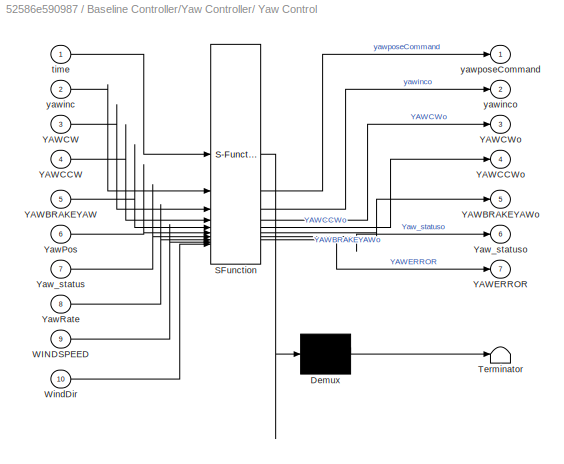
BLOCK [SubSystem] Baseline Controller/Yaw Controller/ Yaw Control
  ErrorFcn = Stateflow.Translate.translate
  PermitHierarchicalResolution = ExplicitOnly
  SFBlockType = MATLAB Function
  TreatAsAtomicUnit = on
BLOCK [Demux] Baseline Controller/Yaw Controller/ Yaw Control/ Demux 
  Outputs = 1
BLOCK [S-Function] Baseline Controller/Yaw Controller/ Yaw Control/ SFunction 
  EnableBusSupport = on
  FunctionName = sf_sfun
  PortCounts = [10 8]
  SFcnIsStateOwnerBlock = off
  SFunctionDeploymentMode = off
  Tag = Stateflow S-Function 6
BLOCK [Terminator] Baseline Controller/Yaw Controller/ Yaw Control/ Terminator 
BLOCK [Inport] Baseline Controller/Yaw Controller/ Yaw Control/WINDSPEED
  Port = 9
BLOCK [Inport] Baseline Controller/Yaw Controller/ Yaw Control/WindDir
  Port = 10
BLOCK [Inport] Baseline Controller/Yaw Controller/ Yaw Control/YAWBRAKEYAW
  Port = 5
BLOCK [Outport] Baseline Controller/Yaw Controller/ Yaw Control/YAWBRAKEYAWo
  Port = 5
BLOCK [Inport] Baseline Controller/Yaw Controller/ Yaw Control/YAWCCW
  Port = 4
BLOCK [Outport] Baseline Controller/Yaw Controller/ Yaw Control/YAWCCWo
  Port = 4
BLOCK [Inport] Baseline Controller/Yaw Controller/ Yaw Control/YAWCW
  Port = 3
BLOCK [Outport] Baseline Controller/Yaw Controller/ Yaw Control/YAWCWo
  Port = 3
BLOCK [Outport] Baseline Controller/Yaw Controller/ Yaw Control/YAWERROR
  Port = 7
BLOCK [Inport] Baseline Controller/Yaw Controller/ Yaw Control/YawPos
  Port = 6
BLOCK [Inport] Baseline Controller/Yaw Controller/ Yaw Control/YawRate
  Port = 8
BLOCK [Inport] Baseline Controller/Yaw Controller/ Yaw Control/Yaw_status
  Port = 7
BLOCK [Outport] Baseline Controller/Yaw Controller/ Yaw Control/Yaw_statuso
  Port = 6
BLOCK [Inport] Baseline Controller/Yaw Controller/ Yaw Control/time
BLOCK [Inport] Baseline Controller/Yaw Controller/ Yaw Control/yawinc
  Port = 2
BLOCK [Outport] Baseline Controller/Yaw Controller/ Yaw Control/yawinco
  Port = 2
BLOCK [Outport] Baseline Controller/Yaw Controller/ Yaw Control/yawposeCommand
BLOCK [Clock] Baseline Controller/Yaw Controller/Clock
BLOCK [Constant] Baseline Controller/Yaw Controller/Constant2
  Value = OLControlParams.Disable
BLOCK [Delay] Baseline Controller/Yaw Controller/Delay1
  DelayLength = 1
  InitialCondition = 0
  InputPortMap = u0
BLOCK [Delay] Baseline Controller/Yaw Controller/Delay2
  DelayLength = 1
  InitialCondition = 0
  InputPortMap = u0
BLOCK [Delay] Baseline Controller/Yaw Controller/Delay3
  DelayLength = 1
  InitialCondition = 0
  InputPortMap = u0
BLOCK [Delay] Baseline Controller/Yaw Controller/Delay4
  DelayLength = 1
  InitialCondition = 0
  InputPortMap = u0
BLOCK [Delay] Baseline Controller/Yaw Controller/Delay5
  DelayLength = 1
  InitialCondition = 0
  InputPortMap = u0
BLOCK [From] Baseline Controller/Yaw Controller/From2
  GotoTag = Ypos
BLOCK [From] Baseline Controller/Yaw Controller/From3
  GotoTag = YRate
BLOCK [From] Baseline Controller/Yaw Controller/From4
  GotoTag = Wind1VelX
BLOCK [From] Baseline Controller/Yaw Controller/From5
  GotoTag = Wind1VelY
BLOCK [From] Baseline Controller/Yaw Controller/From6
  GotoTag = Wind1VelX
BLOCK [Goto] Baseline Controller/Yaw Controller/Goto
  GotoTag = YawError
  TagVisibility = global
BLOCK [Mux] Baseline Controller/Yaw Controller/Mux
  DisplayOption = bar
  Inputs = 2
BLOCK [Product] Baseline Controller/Yaw Controller/Product1
BLOCK [Scope] Baseline Controller/Yaw Controller/Scope
  Floating = off
  NumInputPorts = 1
  ScopeSpecificationString = Simulink.scopes.TimeScopeBlockCfg('CurrentConfiguration', extmgr.ConfigurationSet(extmgr.Configuration('Core','General UI',true),extmgr.Configuration('Core','Source UI',true),extmgr.Configuration('Sources','WiredSimulink',true,'DataLoggingVariableName','ScopeData1'),extmgr.Configuration('Visuals','Time Domain',true,'SerializedDisplays',{struct('MinYLimReal','-3.67401','MaxYLimReal','1.07489','YLab...<+1406ch>
BLOCK [Scope] Baseline Controller/Yaw Controller/Scope1
  Floating = off
  NumInputPorts = 1
  ScopeSpecificationString = Simulink.scopes.TimeScopeBlockCfg('CurrentConfiguration', extmgr.ConfigurationSet(extmgr.Configuration('Core','General UI',true),extmgr.Configuration('Core','Source UI',true),extmgr.Configuration('Sources','WiredSimulink',true,'DataLoggingVariableName','ScopeData1'),extmgr.Configuration('Visuals','Time Domain',true,'SerializedDisplays',{struct('MinYLimReal','2.25895','MaxYLimReal','4.10712','YLabe...<+1405ch>
BLOCK [Scope] Baseline Controller/Yaw Controller/Scope2
  Floating = off
  NumInputPorts = 1
  ScopeSpecificationString = Simulink.scopes.TimeScopeBlockCfg('CurrentConfiguration', extmgr.ConfigurationSet(extmgr.Configuration('Core','General UI',true),extmgr.Configuration('Core','Source UI',true),extmgr.Configuration('Sources','WiredSimulink',true,'DataLoggingVariableName','ScopeData2'),extmgr.Configuration('Visuals','Time Domain',true,'SerializedDisplays',{struct('MinYLimReal','-5.31547','MaxYLimReal','15.84804','YLa...<+1396ch>
BLOCK [Scope] Baseline Controller/Yaw Controller/Scope4
  Floating = off
  NumInputPorts = 1
  ScopeSpecificationString = Simulink.scopes.TimeScopeBlockCfg('CurrentConfiguration', extmgr.ConfigurationSet(extmgr.Configuration('Core','General UI',true),extmgr.Configuration('Core','Source UI',true),extmgr.Configuration('Sources','WiredSimulink',true,'DataLoggingVariableName','ScopeData1'),extmgr.Configuration('Visuals','Time Domain',true,'SerializedDisplays',{struct('MinYLimReal','-5.31547','MaxYLimReal','15.84804','YLa...<+1410ch>
BLOCK [Scope] Baseline Controller/Yaw Controller/Scope5
  Floating = off
  NumInputPorts = 1
  ScopeSpecificationString = Simulink.scopes.TimeScopeBlockCfg('CurrentConfiguration', extmgr.ConfigurationSet(extmgr.Configuration('Core','General UI',true),extmgr.Configuration('Core','Source UI',true),extmgr.Configuration('Sources','WiredSimulink',true,'DataLoggingVariableName','ScopeData2'),extmgr.Configuration('Visuals','Time Domain',true,'SerializedDisplays',{struct('MinYLimReal','-0.37574','MaxYLimReal','11.36816','YLa...<+1407ch>
BLOCK [Switch] Baseline Controller/Yaw Controller/Switch
  Criteria = u2 > Threshold
  InputSameDT = off
  SaturateOnIntegerOverflow = off
  Threshold = 0.5
BLOCK [SubSystem] Baseline Controller/Yaw Controller/Winddirection(deg)
  ErrorFcn = Stateflow.Translate.translate
  PermitHierarchicalResolution = ExplicitOnly
  SFBlockType = MATLAB Function
  TreatAsAtomicUnit = on
BLOCK [Demux] Baseline Controller/Yaw Controller/Winddirection(deg)/ Demux 
  Outputs = 1
BLOCK [S-Function] Baseline Controller/Yaw Controller/Winddirection(deg)/ SFunction 
  EnableBusSupport = on
  FunctionName = sf_sfun
  PortCounts = [2 2]
  SFcnIsStateOwnerBlock = off
  SFunctionDeploymentMode = off
  Tag = Stateflow S-Function 4
BLOCK [Terminator] Baseline Controller/Yaw Controller/Winddirection(deg)/ Terminator 
BLOCK [Outport] Baseline Controller/Yaw Controller/Winddirection(deg)/Wdo
BLOCK [Inport] Baseline Controller/Yaw Controller/Winddirection(deg)/Windx
BLOCK [Inport] Baseline Controller/Yaw Controller/Winddirection(deg)/Windy
  Port = 2
BLOCK [Display] Baseline Controller/Yaw Controller/Yaw Break
  Decimation = 2
BLOCK [Display] Baseline Controller/Yaw Controller/Yaw Status
  Decimation = 2
BLOCK [Constant] Baseline Controller/Yaw Controller/Yaw rate
  Value = .6
BLOCK [Scope] Baseline Controller/Yaw Controller/YawError
  Floating = off
  NumInputPorts = 1
  ScopeSpecificationString = Simulink.scopes.TimeScopeBlockCfg('CurrentConfiguration', extmgr.ConfigurationSet(extmgr.Configuration('Core','General UI',true),extmgr.Configuration('Core','Source UI',true),extmgr.Configuration('Sources','WiredSimulink',true,'DataLoggingVariableName','ScopeData3'),extmgr.Configuration('Visuals','Time Domain',true,'SerializedDisplays',{struct('MinYLimReal','2.25027','MaxYLimReal','4.09837','YLabe...<+1405ch>
BLOCK [Outport] Baseline Controller/Yaw Controller/yaw and yaw rate
BLOCK [Scope] Baseline Controller/brake
  Floating = off
  NumInputPorts = 1
  ScopeSpecificationString = Simulink.scopes.TimeScopeBlockCfg('CurrentConfiguration', extmgr.ConfigurationSet(extmgr.Configuration('Core','General UI',true),extmgr.Configuration('Core','Source UI',true),extmgr.Configuration('Sources','WiredSimulink',true,'DataLoggingVariableName','ScopeData1'),extmgr.Configuration('Visuals','Time Domain',true,'SerializedDisplays',{struct('MinYLimReal','90.00000','MaxYLimReal','110.00000','YL...<+1416ch>
BLOCK [Gain] Baseline Controller/gen eff
  Gain = Parameters.Turbine.gen_eff
BLOCK [SubSystem] FAST Nonlinear Wind Turbine
BLOCK [Inport] FAST Nonlinear Wind Turbine/Blade Pitch Angles (rad)
  Port = 3
BLOCK [Constant] FAST Nonlinear Wind Turbine/Constant
  Value = zeros(43, 1)
BLOCK [Inport] FAST Nonlinear Wind Turbine/Gen. Torque (Nm) and Power (W)
BLOCK [Inport] FAST Nonlinear Wind Turbine/High-Speed Shaft Braking Fraction (-)
  Port = 4
BLOCK [Mux] FAST Nonlinear Wind Turbine/Mux1
  DisplayOption = bar
  Inputs = 5
BLOCK [Outport] FAST Nonlinear Wind Turbine/OutData
  VectorParamsAs1DForOutWhenUnconnected = off
BLOCK [S-Function] FAST Nonlinear Wind Turbine/S-Function
  EnableBusSupport = off
  FunctionName = FAST_SFunc
  Parameters = FAST_InputFileName, TMax, 0
  SFcnIsStateOwnerBlock = off
  SFunctionDeploymentMode = off
BLOCK [SignalSpecification] FAST Nonlinear Wind Turbine/Signal Specification1
  Dimensions = 2
  OutDataTypeStr = double
  SignalType = real
BLOCK [SignalSpecification] FAST Nonlinear Wind Turbine/Signal Specification2
  Dimensions = 2
  OutDataTypeStr = double
  SignalType = real
BLOCK [Inport] FAST Nonlinear Wind Turbine/Yaw Position (rad) and Rate (rad//s)
  Port = 2
BLOCK [Mux] Mux2
  DisplayOption = bar
  Inputs = 3
  NameLocation = top
BLOCK [Constant] Parameters.Turbine.NumBlades
  IOType = siggen
BLOCK [RateTransition] Rate Transition1
BLOCK [Scope] Scope
  Floating = off
  NumInputPorts = 6
  ScopeSpecificationString = Simulink.scopes.TimeScopeBlockCfg('CurrentConfiguration', extmgr.ConfigurationSet(extmgr.Configuration('Core','General UI',true),extmgr.Configuration('Core','Source UI',true),extmgr.Configuration('Sources','WiredSimulink',true,'DataLoggingVariableName','ScopeData1'),extmgr.Configuration('Visuals','Time Domain',true,'SerializedDisplays',{struct('MinYLimReal','2.04115','MaxYLimReal','6.95547','YLabe...<+3459ch>
BLOCK [ToFile] To File
  Filename = <userpath>/Documents/Research/ipc_tuning/sl_outputs/case_1_extreme_k_cases_turbsim
  MatrixName = OutData
BLOCK [Fcn] extract Azimuth
  Expr = u(strmatch('Azimuth',OutList))
BLOCK [Fcn] extract HSS speed1
  Expr = u(strmatch('Wind1VelX',OutList))
BLOCK [Fcn] extract HSS speed2
  Expr = u(strmatch('BldPitch1',OutList))
BLOCK [Fcn] extract HSS speed3
  Expr = u(strmatch('GenTq',OutList))
BLOCK [Fcn] extract HSS speed4
  Expr = u(strmatch('GenSpeed',OutList))
BLOCK [Fcn] extract HSS speed5
  Expr = u(strmatch('GenPwr',OutList))
BLOCK [Fcn] extract Myc1
  Expr = u(strmatch('RootMyc1',OutList))
BLOCK [Fcn] extract Myc2
  Expr = u(strmatch('RootMyc2',OutList))
BLOCK [Fcn] extract Myc3
  Expr = u(strmatch('RootMyc3',OutList))
BLOCK [Fcn] extract Rot speed
  Expr = u(strmatch('RotSpeed',OutList))
BLOCK [Fcn] extract RotSpeed
  Expr = u(strmatch('RotSpeed',OutList))
BLOCK [Fcn] extract WindVelX1
  Expr = u(strmatch('Wind1VelX',OutList))
BLOCK [ToWorkspace] qdotdot_out
  Commented = on
  MaxDataPoints = inf
  SampleTime = -1
  SaveFormat = Structure With Time
  VariableName = OutData
ANNOTATION (root): PI Pitch Controller Baseline Torque Controller
ANNOTATION Baseline Controller/Cyclic Pitch controller/1P Cyclic Pitch Controller1: anti-windup
ANNOTATION Baseline Controller/Cyclic Pitch controller/1P Cyclic Pitch Controller1: k
ANNOTATION Baseline Controller/PID Pitch controller: fine pitch offset?
NET Baseline Controller/Add:1 -> Baseline Controller/Delay2:1, Baseline Controller/Pitch angles :1, Baseline Controller/Rate Transition2:1, Baseline Controller/SetpointSmoother:2, Baseline Controller/To deg:1
LINE Baseline Controller/Azimuth:1 -> Baseline Controller/Cyclic Pitch controller:3
LINE Baseline Controller/Brake Control/Brake:1 -> Baseline Controller/Brake Control/Brake Percent:1
LINE Baseline Controller/Brake Control:1 -> Baseline Controller/Rate Transition3:1
LINE Baseline Controller/Constant1:1 -> Baseline Controller/Min RPM Constraint to Enable PeakShaver:3
LINE Baseline Controller/Constant5:1 -> Baseline Controller/Min RPM Constraint to Enable PeakShaver:1
LINE Baseline Controller/Cyclic Pitch controller/1P Cyclic Pitch Controller1/ :1 -> Baseline Controller/Cyclic Pitch controller/1P Cyclic Pitch Controller1/Zero-Order Hold:1
NET Baseline Controller/Cyclic Pitch controller/1P Cyclic Pitch Controller1/Azimuth (deg):1 -> Baseline Controller/Cyclic Pitch controller/1P Cyclic Pitch Controller1/d-q transformation:2, Baseline Controller/Cyclic Pitch controller/1P Cyclic Pitch Controller1/inverse d-q transformation:2
NET Baseline Controller/Cyclic Pitch controller/1P Cyclic Pitch Controller1/Col. Pitch:1 -> Baseline Controller/Cyclic Pitch controller/1P Cyclic Pitch Controller1/Scope:2, Baseline Controller/Cyclic Pitch controller/1P Cyclic Pitch Controller1/saturation (limit schedule)1:2
LINE Baseline Controller/Cyclic Pitch controller/1P Cyclic Pitch Controller1/Constant1:1 -> Baseline Controller/Cyclic Pitch controller/1P Cyclic Pitch Controller1/d-q transformation:3
LINE Baseline Controller/Cyclic Pitch controller/1P Cyclic Pitch Controller1/Constant2:1 -> Baseline Controller/Cyclic Pitch controller/1P Cyclic Pitch Controller1/inverse d-q transformation:3
LINE Baseline Controller/Cyclic Pitch controller/1P Cyclic Pitch Controller1/Constant3:1 -> Baseline Controller/Cyclic Pitch controller/1P Cyclic Pitch Controller1/MATLAB Function:2
LINE Baseline Controller/Cyclic Pitch controller/1P Cyclic Pitch Controller1/Constant:1 -> Baseline Controller/Cyclic Pitch controller/1P Cyclic Pitch Controller1/Sum:1
LINE Baseline Controller/Cyclic Pitch controller/1P Cyclic Pitch Controller1/Gen Speed:1 -> Baseline Controller/Cyclic Pitch controller/1P Cyclic Pitch Controller1/M0 Signal Proc.:2
NET Baseline Controller/Cyclic Pitch controller/1P Cyclic Pitch Controller1/LPV System:1 -> Baseline Controller/Cyclic Pitch controller/1P Cyclic Pitch Controller1/IPC Control:2, Baseline Controller/Cyclic Pitch controller/1P Cyclic Pitch Controller1/MATLAB Function:1
LINE Baseline Controller/Cyclic Pitch controller/1P Cyclic Pitch Controller1/Lead Correction:1 -> Baseline Controller/Cyclic Pitch controller/1P Cyclic Pitch Controller1/Mux5:1
LINE Baseline Controller/Cyclic Pitch controller/1P Cyclic Pitch Controller1/Lead Correction:2 -> Baseline Controller/Cyclic Pitch controller/1P Cyclic Pitch Controller1/Mux5:2
LINE Baseline Controller/Cyclic Pitch controller/1P Cyclic Pitch Controller1/M0 Signal Proc./Add:1 -> Baseline Controller/Cyclic Pitch controller/1P Cyclic Pitch Controller1/M0 Signal Proc./Gain:1
LINE Baseline Controller/Cyclic Pitch controller/1P Cyclic Pitch Controller1/M0 Signal Proc./Demux1:1 -> Baseline Controller/Cyclic Pitch controller/1P Cyclic Pitch Controller1/M0 Signal Proc./Add:1
LINE Baseline Controller/Cyclic Pitch controller/1P Cyclic Pitch Controller1/M0 Signal Proc./Demux1:2 -> Baseline Controller/Cyclic Pitch controller/1P Cyclic Pitch Controller1/M0 Signal Proc./Add:2
LINE Baseline Controller/Cyclic Pitch controller/1P Cyclic Pitch Controller1/M0 Signal Proc./Demux1:3 -> Baseline Controller/Cyclic Pitch controller/1P Cyclic Pitch Controller1/M0 Signal Proc./Add:3
NET Baseline Controller/Cyclic Pitch controller/1P Cyclic Pitch Controller1/M0 Signal Proc./Gain:1 -> Baseline Controller/Cyclic Pitch controller/1P Cyclic Pitch Controller1/M0 Signal Proc./Moving 1P Notch1:1, Baseline Controller/Cyclic Pitch controller/1P Cyclic Pitch Controller1/M0 Signal Proc./Scope:1
NET Baseline Controller/Cyclic Pitch controller/1P Cyclic Pitch Controller1/M0 Signal Proc./GenSpeed:1 -> Baseline Controller/Cyclic Pitch controller/1P Cyclic Pitch Controller1/M0 Signal Proc./Moving 1P Notch1:2, Baseline Controller/Cyclic Pitch controller/1P Cyclic Pitch Controller1/M0 Signal Proc./Moving 2P Notch2:2
NET Baseline Controller/Cyclic Pitch controller/1P Cyclic Pitch Controller1/M0 Signal Proc./LTI System:1 -> Baseline Controller/Cyclic Pitch controller/1P Cyclic Pitch Controller1/M0 Signal Proc./M0:1, Baseline Controller/Cyclic Pitch controller/1P Cyclic Pitch Controller1/M0 Signal Proc./Scope:2
LINE Baseline Controller/Cyclic Pitch controller/1P Cyclic Pitch Controller1/M0 Signal Proc./Moving 1P Notch1/Gain:1 -> Baseline Controller/Cyclic Pitch controller/1P Cyclic Pitch Controller1/M0 Signal Proc./Moving 1P Notch1/Moving 2P Filter:2
LINE Baseline Controller/Cyclic Pitch controller/1P Cyclic Pitch Controller1/M0 Signal Proc./Moving 1P Notch1/GenSpeedIN:1 -> Baseline Controller/Cyclic Pitch controller/1P Cyclic Pitch Controller1/M0 Signal Proc./Moving 1P Notch1/Slow Low Pass for Param:1
LINE Baseline Controller/Cyclic Pitch controller/1P Cyclic Pitch Controller1/M0 Signal Proc./Moving 1P Notch1/Input:1 -> Baseline Controller/Cyclic Pitch controller/1P Cyclic Pitch Controller1/M0 Signal Proc./Moving 1P Notch1/Moving 2P Filter:1
LINE Baseline Controller/Cyclic Pitch controller/1P Cyclic Pitch Controller1/M0 Signal Proc./Moving 1P Notch1/Moving 2P Filter:1 -> Baseline Controller/Cyclic Pitch controller/1P Cyclic Pitch Controller1/M0 Signal Proc./Moving 1P Notch1/Rate Transition:1
LINE Baseline Controller/Cyclic Pitch controller/1P Cyclic Pitch Controller1/M0 Signal Proc./Moving 1P Notch1/Rate Transition:1 -> Baseline Controller/Cyclic Pitch controller/1P Cyclic Pitch Controller1/M0 Signal Proc./Moving 1P Notch1/Output:1
LINE Baseline Controller/Cyclic Pitch controller/1P Cyclic Pitch Controller1/M0 Signal Proc./Moving 1P Notch1/Slow Low Pass for Param:1 -> Baseline Controller/Cyclic Pitch controller/1P Cyclic Pitch Controller1/M0 Signal Proc./Moving 1P Notch1/Gain:1
LINE Baseline Controller/Cyclic Pitch controller/1P Cyclic Pitch Controller1/M0 Signal Proc./Moving 1P Notch1:1 -> Baseline Controller/Cyclic Pitch controller/1P Cyclic Pitch Controller1/M0 Signal Proc./Moving 2P Notch2:1
LINE Baseline Controller/Cyclic Pitch controller/1P Cyclic Pitch Controller1/M0 Signal Proc./Moving 2P Notch2/Gain:1 -> Baseline Controller/Cyclic Pitch controller/1P Cyclic Pitch Controller1/M0 Signal Proc./Moving 2P Notch2/Moving 2P Filter:2
LINE Baseline Controller/Cyclic Pitch controller/1P Cyclic Pitch Controller1/M0 Signal Proc./Moving 2P Notch2/GenSpeedIN:1 -> Baseline Controller/Cyclic Pitch controller/1P Cyclic Pitch Controller1/M0 Signal Proc./Moving 2P Notch2/Slow Low Pass for Param:1
LINE Baseline Controller/Cyclic Pitch controller/1P Cyclic Pitch Controller1/M0 Signal Proc./Moving 2P Notch2/Input:1 -> Baseline Controller/Cyclic Pitch controller/1P Cyclic Pitch Controller1/M0 Signal Proc./Moving 2P Notch2/Moving 2P Filter:1
LINE Baseline Controller/Cyclic Pitch controller/1P Cyclic Pitch Controller1/M0 Signal Proc./Moving 2P Notch2/Moving 2P Filter:1 -> Baseline Controller/Cyclic Pitch controller/1P Cyclic Pitch Controller1/M0 Signal Proc./Moving 2P Notch2/Rate Transition:1
LINE Baseline Controller/Cyclic Pitch controller/1P Cyclic Pitch Controller1/M0 Signal Proc./Moving 2P Notch2/Rate Transition:1 -> Baseline Controller/Cyclic Pitch controller/1P Cyclic Pitch Controller1/M0 Signal Proc./Moving 2P Notch2/Output:1
LINE Baseline Controller/Cyclic Pitch controller/1P Cyclic Pitch Controller1/M0 Signal Proc./Moving 2P Notch2/Slow Low Pass for Param:1 -> Baseline Controller/Cyclic Pitch controller/1P Cyclic Pitch Controller1/M0 Signal Proc./Moving 2P Notch2/Gain:1
LINE Baseline Controller/Cyclic Pitch controller/1P Cyclic Pitch Controller1/M0 Signal Proc./Moving 2P Notch2:1 -> Baseline Controller/Cyclic Pitch controller/1P Cyclic Pitch Controller1/M0 Signal Proc./LTI System:1
LINE Baseline Controller/Cyclic Pitch controller/1P Cyclic Pitch Controller1/M0 Signal Proc./My1,2:1 -> Baseline Controller/Cyclic Pitch controller/1P Cyclic Pitch Controller1/M0 Signal Proc./Demux1:1
NET Baseline Controller/Cyclic Pitch controller/1P Cyclic Pitch Controller1/M0 Signal Proc.:1 -> Baseline Controller/Cyclic Pitch controller/1P Cyclic Pitch Controller1/Scope:3, Baseline Controller/Cyclic Pitch controller/1P Cyclic Pitch Controller1/saturation (limit schedule)1:3
NET Baseline Controller/Cyclic Pitch controller/1P Cyclic Pitch Controller1/MATLAB Function:1 -> Baseline Controller/Cyclic Pitch controller/1P Cyclic Pitch Controller1/IPC Control:3, Baseline Controller/Cyclic Pitch controller/1P Cyclic Pitch Controller1/Mux:1, Baseline Controller/Cyclic Pitch controller/1P Cyclic Pitch Controller1/Scope:1, Baseline Controller/Cyclic Pitch controller/1P Cyclic Pitch Controller1/Sum9:1, Baseline Controller/Cyclic Pitch controller/1P Cyclic Pitch Controller1/saturation (limit schedule)1:1
LINE Baseline Controller/Cyclic Pitch controller/1P Cyclic Pitch Controller1/MATLAB Function:2 -> Baseline Controller/Cyclic Pitch controller/1P Cyclic Pitch Controller1/Mux:2
NET Baseline Controller/Cyclic Pitch controller/1P Cyclic Pitch Controller1/Mux1:1 -> Baseline Controller/Cyclic Pitch controller/1P Cyclic Pitch Controller1/IPC Control:1, Baseline Controller/Cyclic Pitch controller/1P Cyclic Pitch Controller1/Sum:2
NET Baseline Controller/Cyclic Pitch controller/1P Cyclic Pitch Controller1/Mux4:1 -> Baseline Controller/Cyclic Pitch controller/1P Cyclic Pitch Controller1/IPC Cmd (rad,3):1, Baseline Controller/Cyclic Pitch controller/1P Cyclic Pitch Controller1/MBC Out:2
NET Baseline Controller/Cyclic Pitch controller/1P Cyclic Pitch Controller1/Mux5:1 -> Baseline Controller/Cyclic Pitch controller/1P Cyclic Pitch Controller1/MBC Out:1, Baseline Controller/Cyclic Pitch controller/1P Cyclic Pitch Controller1/inverse d-q transformation:1
LINE Baseline Controller/Cyclic Pitch controller/1P Cyclic Pitch Controller1/Mux:1 -> Baseline Controller/Cyclic Pitch controller/1P Cyclic Pitch Controller1/To File:1
LINE Baseline Controller/Cyclic Pitch controller/1P Cyclic Pitch Controller1/Phase (deg):1 -> Baseline Controller/Cyclic Pitch controller/1P Cyclic Pitch Controller1/Lead Correction:2
NET Baseline Controller/Cyclic Pitch controller/1P Cyclic Pitch Controller1/RootMyb:1 -> Baseline Controller/Cyclic Pitch controller/1P Cyclic Pitch Controller1/M0 Signal Proc.:1, Baseline Controller/Cyclic Pitch controller/1P Cyclic Pitch Controller1/MBCIPC1:1, Baseline Controller/Cyclic Pitch controller/1P Cyclic Pitch Controller1/d-q transformation:1
LINE Baseline Controller/Cyclic Pitch controller/1P Cyclic Pitch Controller1/Sum9:1 -> Baseline Controller/Cyclic Pitch controller/1P Cyclic Pitch Controller1/ :1
LINE Baseline Controller/Cyclic Pitch controller/1P Cyclic Pitch Controller1/Sum:1 -> Baseline Controller/Cyclic Pitch controller/1P Cyclic Pitch Controller1/LPV System:1
NET Baseline Controller/Cyclic Pitch controller/1P Cyclic Pitch Controller1/WindVelX1:1 -> Baseline Controller/Cyclic Pitch controller/1P Cyclic Pitch Controller1/Display:1, Baseline Controller/Cyclic Pitch controller/1P Cyclic Pitch Controller1/LPV System:2
LINE Baseline Controller/Cyclic Pitch controller/1P Cyclic Pitch Controller1/Zero-Order Hold:1 -> Baseline Controller/Cyclic Pitch controller/1P Cyclic Pitch Controller1/Demux:1
NET Baseline Controller/Cyclic Pitch controller/1P Cyclic Pitch Controller1/d-q transformation:1 -> Baseline Controller/Cyclic Pitch controller/1P Cyclic Pitch Controller1/MBCIPC2:1, Baseline Controller/Cyclic Pitch controller/1P Cyclic Pitch Controller1/Mux1:1
NET Baseline Controller/Cyclic Pitch controller/1P Cyclic Pitch Controller1/d-q transformation:2 -> Baseline Controller/Cyclic Pitch controller/1P Cyclic Pitch Controller1/MBCIPC2:2, Baseline Controller/Cyclic Pitch controller/1P Cyclic Pitch Controller1/Mux1:2
LINE Baseline Controller/Cyclic Pitch controller/1P Cyclic Pitch Controller1/inverse d-q transformation:1 -> Baseline Controller/Cyclic Pitch controller/1P Cyclic Pitch Controller1/Mux4:1
LINE Baseline Controller/Cyclic Pitch controller/1P Cyclic Pitch Controller1/inverse d-q transformation:2 -> Baseline Controller/Cyclic Pitch controller/1P Cyclic Pitch Controller1/Mux4:2
LINE Baseline Controller/Cyclic Pitch controller/1P Cyclic Pitch Controller1/inverse d-q transformation:3 -> Baseline Controller/Cyclic Pitch controller/1P Cyclic Pitch Controller1/Mux4:3
NET Baseline Controller/Cyclic Pitch controller/1P Cyclic Pitch Controller1/saturation (limit schedule)1:1 -> Baseline Controller/Cyclic Pitch controller/1P Cyclic Pitch Controller1/Lead Correction:1, Baseline Controller/Cyclic Pitch controller/1P Cyclic Pitch Controller1/Sum9:2
LINE Baseline Controller/Cyclic Pitch controller/1P Cyclic Pitch Controller1/saturation (limit schedule)1:2 -> Baseline Controller/Cyclic Pitch controller/1P Cyclic Pitch Controller1/Scope:4
LINE Baseline Controller/Cyclic Pitch controller/1P Cyclic Pitch Controller1:1 -> Baseline Controller/Cyclic Pitch controller/Switch:1
LINE Baseline Controller/Cyclic Pitch controller/1P Phase:1 -> Baseline Controller/Cyclic Pitch controller/1P Cyclic Pitch Controller1:4
LINE Baseline Controller/Cyclic Pitch controller/Azimuth (deg):1 -> Baseline Controller/Cyclic Pitch controller/1P Cyclic Pitch Controller1:2
LINE Baseline Controller/Cyclic Pitch controller/Blade Mean (3)/Add:1 -> Baseline Controller/Cyclic Pitch controller/Blade Mean (3)/Gain:1
LINE Baseline Controller/Cyclic Pitch controller/Blade Mean (3)/Demux:1 -> Baseline Controller/Cyclic Pitch controller/Blade Mean (3)/Add:1
LINE Baseline Controller/Cyclic Pitch controller/Blade Mean (3)/Demux:2 -> Baseline Controller/Cyclic Pitch controller/Blade Mean (3)/Add:2
LINE Baseline Controller/Cyclic Pitch controller/Blade Mean (3)/Demux:3 -> Baseline Controller/Cyclic Pitch controller/Blade Mean (3)/Add:3
LINE Baseline Controller/Cyclic Pitch controller/Blade Mean (3)/Gain:1 -> Baseline Controller/Cyclic Pitch controller/Blade Mean (3)/Output:1
LINE Baseline Controller/Cyclic Pitch controller/Blade Mean (3)/Input (3):1 -> Baseline Controller/Cyclic Pitch controller/Blade Mean (3)/Demux:1
LINE Baseline Controller/Cyclic Pitch controller/Blade Mean (3):1 -> Baseline Controller/Cyclic Pitch controller/1P Cyclic Pitch Controller1:3
LINE Baseline Controller/Cyclic Pitch controller/Coll. Pitch:1 -> Baseline Controller/Cyclic Pitch controller/Blade Mean (3):1
LINE Baseline Controller/Cyclic Pitch controller/Constant1:1 -> Baseline Controller/Cyclic Pitch controller/Switch:2
NET Baseline Controller/Cyclic Pitch controller/Constant:1 -> Baseline Controller/Cyclic Pitch controller/Mux1:1, Baseline Controller/Cyclic Pitch controller/Mux1:2, Baseline Controller/Cyclic Pitch controller/Mux1:3
LINE Baseline Controller/Cyclic Pitch controller/Gen Speed:1 -> Baseline Controller/Cyclic Pitch controller/1P Cyclic Pitch Controller1:5
LINE Baseline Controller/Cyclic Pitch controller/Mux1:1 -> Baseline Controller/Cyclic Pitch controller/Switch:3
LINE Baseline Controller/Cyclic Pitch controller/RootMyb (3):1 -> Baseline Controller/Cyclic Pitch controller/1P Cyclic Pitch Controller1:1
LINE Baseline Controller/Cyclic Pitch controller/Switch:1 -> Baseline Controller/Cyclic Pitch controller/IPC Cmd (rad,3):1
LINE Baseline Controller/Cyclic Pitch controller/WindVelX1:1 -> Baseline Controller/Cyclic Pitch controller/1P Cyclic Pitch Controller1:6
NET Baseline Controller/Cyclic Pitch controller:1 -> Baseline Controller/Add:2, Baseline Controller/Demux:1
NET Baseline Controller/DTUPS/DTU PS Table:1 -> Baseline Controller/DTUPS/Saturation 0 to 90 deg5:1, Baseline Controller/DTUPS/Scope:2
NET Baseline Controller/DTUPS/Discrete Filter1:1 -> Baseline Controller/DTUPS/DTU PS Table:1, Baseline Controller/DTUPS/Scope:1
LINE Baseline Controller/DTUPS/Saturation 0 to 90 deg5:1 -> Baseline Controller/DTUPS/minfinePitch (deg):1
LINE Baseline Controller/DTUPS/U_est:1 -> Baseline Controller/DTUPS/Discrete Filter1:1
LINE Baseline Controller/DTUPS:1 -> Baseline Controller/PS or Default Fine Pitch Switch:1
LINE Baseline Controller/Default Fine Pitch angle:1 -> Baseline Controller/PS or Default Fine Pitch Switch:3
LINE Baseline Controller/Delay2:1 -> Baseline Controller/Wind Speed Estimator:3
LINE Baseline Controller/Delay3:1 -> Baseline Controller/Wind Speed Estimator:2
LINE Baseline Controller/Demux:1 -> Baseline Controller/Cyclic Pitch angles1:1
LINE Baseline Controller/Demux:2 -> Baseline Controller/Cyclic Pitch angles2:1
LINE Baseline Controller/Demux:3 -> Baseline Controller/Cyclic Pitch angles3:1
NET Baseline Controller/GearBox Ratio:1 -> Baseline Controller/Cyclic Pitch controller:4, Baseline Controller/Wind Speed Estimator:1
NET Baseline Controller/LPF on RotSpeed:1 -> Baseline Controller/Display1:1, Baseline Controller/GearBox Ratio:1, Baseline Controller/Min RPM Constraint to Enable PeakShaver:2, Baseline Controller/PID Pitch controller:1, Baseline Controller/Scope3:2, Baseline Controller/Torque Controller:1
LINE Baseline Controller/LSS Speed:1 -> Baseline Controller/Unit Delay1:1
LINE Baseline Controller/Min RPM Constraint to Enable PeakShaver:1 -> Baseline Controller/PS or Default Fine Pitch Switch:2
NET Baseline Controller/Mux:1 -> Baseline Controller/Rate Transition:1, Baseline Controller/Scope1:1
LINE Baseline Controller/PID Pitch controller/Compare To Zero1:1 -> Baseline Controller/PID Pitch controller/Multiply3:1
LINE Baseline Controller/PID Pitch controller/Constant3:1 -> Baseline Controller/PID Pitch controller/Variable Saturator1:3
LINE Baseline Controller/PID Pitch controller/Discrete-Time Integrator:1 -> Baseline Controller/PID Pitch controller/Gain1:1
LINE Baseline Controller/PID Pitch controller/Fine Pitch (deg):1 -> Baseline Controller/PID Pitch controller/deg2rad:1
LINE Baseline Controller/PID Pitch controller/GK1:1 -> Baseline Controller/PID Pitch controller/Product1:2
LINE Baseline Controller/PID Pitch controller/Gain1:1 -> Baseline Controller/PID Pitch controller/Sum1:3
LINE Baseline Controller/PID Pitch controller/Gain2:1 -> Baseline Controller/PID Pitch controller/Display11:1
NET Baseline Controller/PID Pitch controller/Gain4:1 -> Baseline Controller/PID Pitch controller/Discrete-Time Integrator:1, Baseline Controller/PID Pitch controller/Gain:1
LINE Baseline Controller/PID Pitch controller/Gain:1 -> Baseline Controller/PID Pitch controller/Sum1:2
NET Baseline Controller/PID Pitch controller/Multiply3:1 -> Baseline Controller/PID Pitch controller/Sum3:2, Baseline Controller/PID Pitch controller/dOmega<0:1
NET Baseline Controller/PID Pitch controller/Mux1:1 -> Baseline Controller/PID Pitch controller/Blade Pitch (rad):1, Baseline Controller/PID Pitch controller/Gain2:1, Baseline Controller/PID Pitch controller/Zero-Order Hold1:1
LINE Baseline Controller/PID Pitch controller/Pitch Actuator1:1 -> Baseline Controller/PID Pitch controller/Round Off1:1
LINE Baseline Controller/PID Pitch controller/Pitch_op1:1 -> Baseline Controller/PID Pitch controller/Sum1:1
LINE Baseline Controller/PID Pitch controller/Pitch_op2:1 -> Baseline Controller/PID Pitch controller/Sum3:1
NET Baseline Controller/PID Pitch controller/Product1:1 -> Baseline Controller/PID Pitch controller/Display8:1, Baseline Controller/PID Pitch controller/Variable Saturator1:1
LINE Baseline Controller/PID Pitch controller/Rate Limiter:1 -> Baseline Controller/PID Pitch controller/Pitch Actuator1:1
NET Baseline Controller/PID Pitch controller/RotSpeed:1 -> Baseline Controller/PID Pitch controller/Display:1, Baseline Controller/PID Pitch controller/Sum5:1
LINE Baseline Controller/PID Pitch controller/Round Off1/Gain2:1 -> Baseline Controller/PID Pitch controller/Round Off1/Rounding Function:1
LINE Baseline Controller/PID Pitch controller/Round Off1/Gain3:1 -> Baseline Controller/PID Pitch controller/Round Off1/Out1:1
LINE Baseline Controller/PID Pitch controller/Round Off1/In1:1 -> Baseline Controller/PID Pitch controller/Round Off1/Gain2:1
LINE Baseline Controller/PID Pitch controller/Round Off1/Rounding Function:1 -> Baseline Controller/PID Pitch controller/Round Off1/Gain3:1
NET Baseline Controller/PID Pitch controller/Round Off1:1 -> Baseline Controller/PID Pitch controller/Mux1:1, Baseline Controller/PID Pitch controller/Mux1:2, Baseline Controller/PID Pitch controller/Mux1:3
LINE Baseline Controller/PID Pitch controller/Sum1:1 -> Baseline Controller/PID Pitch controller/Product1:1
LINE Baseline Controller/PID Pitch controller/Sum3:1 -> Baseline Controller/PID Pitch controller/Sum5:2
LINE Baseline Controller/PID Pitch controller/Sum5:1 -> Baseline Controller/PID Pitch controller/Gain4:1
LINE Baseline Controller/PID Pitch controller/Unit Delay1:1 -> Baseline Controller/PID Pitch controller/GK1:1
LINE Baseline Controller/PID Pitch controller/Variable Saturator1:1 -> Baseline Controller/PID Pitch controller/Rate Limiter:1
LINE Baseline Controller/PID Pitch controller/Zero-Order Hold1:1 -> Baseline Controller/PID Pitch controller/Unit Delay1:1
NET Baseline Controller/PID Pitch controller/dOmegaRPM:1 -> Baseline Controller/PID Pitch controller/Compare To Zero1:1, Baseline Controller/PID Pitch controller/Display1:1, Baseline Controller/PID Pitch controller/Multiply3:2
LINE Baseline Controller/PID Pitch controller/deg2rad:1 -> Baseline Controller/PID Pitch controller/Variable Saturator1:2
NET Baseline Controller/PID Pitch controller:1 -> Baseline Controller/Add:1, Baseline Controller/Cyclic Pitch controller:1
NET Baseline Controller/PS or Default Fine Pitch Switch:1 -> Baseline Controller/PID Pitch controller:2, Baseline Controller/PkSh_Out:1, Baseline Controller/SetpointSmoother:3
LINE Baseline Controller/Pitch (deg)2:1 -> Baseline Controller/Torque Controller:2
LINE Baseline Controller/Product:1 -> Baseline Controller/gen eff:1
LINE Baseline Controller/Rate Transition2:1 -> Baseline Controller/Pitch Angles:1
NET Baseline Controller/Rate Transition3:1 -> Baseline Controller/Brake:1, Baseline Controller/brake:1
LINE Baseline Controller/Rate Transition:1 -> Baseline Controller/Gen Torque:1
LINE Baseline Controller/RootMyb(3):1 -> Baseline Controller/Cyclic Pitch controller:2
LINE Baseline Controller/SetpointSmoother/Blade Mean (2)1/Add:1 -> Baseline Controller/SetpointSmoother/Blade Mean (2)1/Gain:1
LINE Baseline Controller/SetpointSmoother/Blade Mean (2)1/Demux:1 -> Baseline Controller/SetpointSmoother/Blade Mean (2)1/Add:1
LINE Baseline Controller/SetpointSmoother/Blade Mean (2)1/Demux:2 -> Baseline Controller/SetpointSmoother/Blade Mean (2)1/Add:2
LINE Baseline Controller/SetpointSmoother/Blade Mean (2)1/Demux:3 -> Baseline Controller/SetpointSmoother/Blade Mean (2)1/Add:3
LINE Baseline Controller/SetpointSmoother/Blade Mean (2)1/Gain:1 -> Baseline Controller/SetpointSmoother/Blade Mean (2)1/Output:1
LINE Baseline Controller/SetpointSmoother/Blade Mean (2)1/Input (2):1 -> Baseline Controller/SetpointSmoother/Blade Mean (2)1/Demux:1
LINE Baseline Controller/SetpointSmoother/Blade Mean (2)1:1 -> Baseline Controller/SetpointSmoother/rad2deg:1
LINE Baseline Controller/SetpointSmoother/BldPitch:1 -> Baseline Controller/SetpointSmoother/Zero-Order Hold1:1
LINE Baseline Controller/SetpointSmoother/Constant1:1 -> Baseline Controller/SetpointSmoother/Divide:2
LINE Baseline Controller/SetpointSmoother/Constant2:1 -> Baseline Controller/SetpointSmoother/Sum1:1
LINE Baseline Controller/SetpointSmoother/Constant3:1 -> Baseline Controller/SetpointSmoother/Divide1:1
LINE Baseline Controller/SetpointSmoother/Constant4:1 -> Baseline Controller/SetpointSmoother/Switch:3
LINE Baseline Controller/SetpointSmoother/Constant5:1 -> Baseline Controller/SetpointSmoother/Switch:2
LINE Baseline Controller/SetpointSmoother/Delay1:1 -> Baseline Controller/SetpointSmoother/Blade Mean (2)1:1
LINE Baseline Controller/SetpointSmoother/Delay:1 -> Baseline Controller/SetpointSmoother/Sum1:2
NET Baseline Controller/SetpointSmoother/Divide1:1 -> Baseline Controller/SetpointSmoother/Sum2:2, Baseline Controller/SetpointSmoother/g1t:1
NET Baseline Controller/SetpointSmoother/Divide:1 -> Baseline Controller/SetpointSmoother/Sum2:1, Baseline Controller/SetpointSmoother/g2b:1
LINE Baseline Controller/SetpointSmoother/Filter Delta_GenRef/Discrete Filter:1 -> Baseline Controller/SetpointSmoother/Filter Delta_GenRef/GainBiasF:1
LINE Baseline Controller/SetpointSmoother/Filter Delta_GenRef/GainBias:1 -> Baseline Controller/SetpointSmoother/Filter Delta_GenRef/Discrete Filter:1
LINE Baseline Controller/SetpointSmoother/Filter Delta_GenRef:1 -> Baseline Controller/SetpointSmoother/Switch:1
LINE Baseline Controller/SetpointSmoother/GenTq:1 -> Baseline Controller/SetpointSmoother/Zero-Order Hold:1
LINE Baseline Controller/SetpointSmoother/Normalizing Gain MaxPitch - FinePitch:1 -> Baseline Controller/SetpointSmoother/Divide:1
LINE Baseline Controller/SetpointSmoother/Normalizing Gain MaxTorque - MinTorque:1 -> Baseline Controller/SetpointSmoother/Divide1:2
LINE Baseline Controller/SetpointSmoother/Sum1:1 -> Baseline Controller/SetpointSmoother/Normalizing Gain MaxTorque - MinTorque:1
NET Baseline Controller/SetpointSmoother/Sum2:1 -> Baseline Controller/SetpointSmoother/Filter Delta_GenRef:1, Baseline Controller/SetpointSmoother/Scope:1, Baseline Controller/SetpointSmoother/delOmega = g2b - g1t:1
LINE Baseline Controller/SetpointSmoother/Sum:1 -> Baseline Controller/SetpointSmoother/Normalizing Gain MaxPitch - FinePitch:1
NET Baseline Controller/SetpointSmoother/Switch:1 -> Baseline Controller/SetpointSmoother/Del_Omega_g:1, Baseline Controller/SetpointSmoother/Del_omega_g:1
LINE Baseline Controller/SetpointSmoother/Zero-Order Hold1:1 -> Baseline Controller/SetpointSmoother/Delay1:1
LINE Baseline Controller/SetpointSmoother/Zero-Order Hold:1 -> Baseline Controller/SetpointSmoother/Delay:1
NET Baseline Controller/SetpointSmoother/fine_pitch (deg):1 -> Baseline Controller/SetpointSmoother/Sum:2, Baseline Controller/SetpointSmoother/fine_pitch:1
LINE Baseline Controller/SetpointSmoother/rad2deg:1 -> Baseline Controller/SetpointSmoother/Sum:1
NET Baseline Controller/SetpointSmoother:1 -> Baseline Controller/PID Pitch controller:3, Baseline Controller/Torque Controller:3
LINE Baseline Controller/To deg:1 -> Baseline Controller/Pitch (deg):1
LINE Baseline Controller/To rad//s:1 -> Baseline Controller/Product:2
LINE Baseline Controller/Torque Controller/Add:1 -> Baseline Controller/Torque Controller/LUT-Based Torque Control:1
LINE Baseline Controller/Torque Controller/Compare To Zero1:1 -> Baseline Controller/Torque Controller/Multiply3:1
LINE Baseline Controller/Torque Controller/Demux:1 -> Baseline Controller/Torque Controller/LUT-Based Torque Control:2
LINE Baseline Controller/Torque Controller/Demux:2 -> Baseline Controller/Torque Controller/Terminator:1
LINE Baseline Controller/Torque Controller/LUT-Based Torque Control/Baseline Torque Cotnroller:1 -> Baseline Controller/Torque Controller/LUT-Based Torque Control/Rate Transition:1
NET Baseline Controller/Torque Controller/LUT-Based Torque Control/Baseline Torque Cotnroller:2 -> Baseline Controller/Torque Controller/LUT-Based Torque Control/Display4:1, Baseline Controller/Torque Controller/LUT-Based Torque Control/Tg_out:1
LINE Baseline Controller/Torque Controller/LUT-Based Torque Control/Blade Pitch:1 -> Baseline Controller/Torque Controller/LUT-Based Torque Control/Zero-Order Hold1:1
NET Baseline Controller/Torque Controller/LUT-Based Torque Control/Pitch Limit:1 -> Baseline Controller/Torque Controller/LUT-Based Torque Control/Baseline Torque Cotnroller:3, Baseline Controller/Torque Controller/LUT-Based Torque Control/Display:1
NET Baseline Controller/Torque Controller/LUT-Based Torque Control/Rate Transition:1 -> Baseline Controller/Torque Controller/LUT-Based Torque Control/Gen Torque:1, Baseline Controller/Torque Controller/LUT-Based Torque Control/Scope:1
NET Baseline Controller/Torque Controller/LUT-Based Torque Control/Rot. Speed:1 -> Baseline Controller/Torque Controller/LUT-Based Torque Control/Baseline Torque Cotnroller:1, Baseline Controller/Torque Controller/LUT-Based Torque Control/Display3:1
NET Baseline Controller/Torque Controller/LUT-Based Torque Control/Zero-Order Hold1:1 -> Baseline Controller/Torque Controller/LUT-Based Torque Control/Baseline Torque Cotnroller:2, Baseline Controller/Torque Controller/LUT-Based Torque Control/Display2:1
NET Baseline Controller/Torque Controller/LUT-Based Torque Control:1 -> Baseline Controller/Torque Controller/GenTqDisp:1, Baseline Controller/Torque Controller/GenTq_SaturationDisp:1, Baseline Controller/Torque Controller/Saturate to Tg_op:1
LINE Baseline Controller/Torque Controller/LowBPLim1:1 -> Baseline Controller/Torque Controller/LUT-Based Torque Control:3
NET Baseline Controller/Torque Controller/Multiply3:1 -> Baseline Controller/Torque Controller/Add:2, Baseline Controller/Torque Controller/Scope:1
LINE Baseline Controller/Torque Controller/Pitch (deg):1 -> Baseline Controller/Torque Controller/Demux:1
NET Baseline Controller/Torque Controller/Rate Limiter 15000Nm//s:1 -> Baseline Controller/Torque Controller/Display4:1, Baseline Controller/Torque Controller/Tg:1
NET Baseline Controller/Torque Controller/Rotspeed:1 -> Baseline Controller/Torque Controller/Add:1, Baseline Controller/Torque Controller/RotSpeedDisp:1
NET Baseline Controller/Torque Controller/Saturate to Tg_op:1 -> Baseline Controller/Torque Controller/GenTq_SaturationDisp:2, Baseline Controller/Torque Controller/Rate Limiter 15000Nm//s:1
NET Baseline Controller/Torque Controller/dOmegarpm:1 -> Baseline Controller/Torque Controller/Compare To Zero1:1, Baseline Controller/Torque Controller/Multiply3:2
NET Baseline Controller/Torque Controller:1 -> Baseline Controller/Delay3:1, Baseline Controller/Display:1, Baseline Controller/Generator Torque:1, Baseline Controller/Mux:1, Baseline Controller/Product:1, Baseline Controller/Scope2:1, Baseline Controller/SetpointSmoother:1, Baseline Controller/Tg_out:1
NET Baseline Controller/Unit Delay1:1 -> Baseline Controller/LPF on RotSpeed:1, Baseline Controller/Scope3:1, Baseline Controller/To rad//s:1
LINE Baseline Controller/Wind Speed Estimator/1-D Lookup Table:1 -> Baseline Controller/Wind Speed Estimator/MATLAB Function:5
LINE Baseline Controller/Wind Speed Estimator/Blade Mean /Add:1 -> Baseline Controller/Wind Speed Estimator/Blade Mean /Gain:1
LINE Baseline Controller/Wind Speed Estimator/Blade Mean /Demux:1 -> Baseline Controller/Wind Speed Estimator/Blade Mean /Add:1
LINE Baseline Controller/Wind Speed Estimator/Blade Mean /Demux:2 -> Baseline Controller/Wind Speed Estimator/Blade Mean /Add:2
LINE Baseline Controller/Wind Speed Estimator/Blade Mean /Demux:3 -> Baseline Controller/Wind Speed Estimator/Blade Mean /Add:3
LINE Baseline Controller/Wind Speed Estimator/Blade Mean /Gain:1 -> Baseline Controller/Wind Speed Estimator/Blade Mean /Output:1
LINE Baseline Controller/Wind Speed Estimator/Blade Mean /Input (3):1 -> Baseline Controller/Wind Speed Estimator/Blade Mean /Demux:1
NET Baseline Controller/Wind Speed Estimator/Blade Mean :1 -> Baseline Controller/Wind Speed Estimator/MATLAB Function:3, Baseline Controller/Wind Speed Estimator/WSE Inputs:3
LINE Baseline Controller/Wind Speed Estimator/Bld Pitch (3, rad):1 -> Baseline Controller/Wind Speed Estimator/Blade Mean :1
LINE Baseline Controller/Wind Speed Estimator/Clock:1 -> Baseline Controller/Wind Speed Estimator/Soft Start:3
LINE Baseline Controller/Wind Speed Estimator/Constant1:1 -> Baseline Controller/Wind Speed Estimator/Soft Start:4
LINE Baseline Controller/Wind Speed Estimator/Constant2:1 -> Baseline Controller/Wind Speed Estimator/Soft Start:2
LINE Baseline Controller/Wind Speed Estimator/Constant3:1 -> Baseline Controller/Wind Speed Estimator/Soft Start:1
LINE Baseline Controller/Wind Speed Estimator/Constant:1 -> Baseline Controller/Wind Speed Estimator/MATLAB Function:9
LINE Baseline Controller/Wind Speed Estimator/Delay1:1 -> Baseline Controller/Wind Speed Estimator/MATLAB Function:7
LINE Baseline Controller/Wind Speed Estimator/Delay2:1 -> Baseline Controller/Wind Speed Estimator/MATLAB Function:8
NET Baseline Controller/Wind Speed Estimator/Delay:1 -> Baseline Controller/Wind Speed Estimator/Demux:1, Baseline Controller/Wind Speed Estimator/MATLAB Function:6
LINE Baseline Controller/Wind Speed Estimator/Demux:1 -> Baseline Controller/Wind Speed Estimator/Terminator:1
LINE Baseline Controller/Wind Speed Estimator/Demux:2 -> Baseline Controller/Wind Speed Estimator/Sum:1
LINE Baseline Controller/Wind Speed Estimator/Demux:3 -> Baseline Controller/Wind Speed Estimator/Sum:2
LINE Baseline Controller/Wind Speed Estimator/Gen Speed (rpm):1 -> Baseline Controller/Wind Speed Estimator/RPM to rad//s:1
NET Baseline Controller/Wind Speed Estimator/Gen Torque:1 -> Baseline Controller/Wind Speed Estimator/MATLAB Function:2, Baseline Controller/Wind Speed Estimator/WSE Inputs:2
LINE Baseline Controller/Wind Speed Estimator/MATLAB Function:1 -> Baseline Controller/Wind Speed Estimator/Soft Start:5
LINE Baseline Controller/Wind Speed Estimator/MATLAB Function:2 -> Baseline Controller/Wind Speed Estimator/Delay:1
LINE Baseline Controller/Wind Speed Estimator/MATLAB Function:3 -> Baseline Controller/Wind Speed Estimator/Delay1:1
LINE Baseline Controller/Wind Speed Estimator/MATLAB Function:4 -> Baseline Controller/Wind Speed Estimator/Delay2:1
LINE Baseline Controller/Wind Speed Estimator/MATLAB Function:5 -> Baseline Controller/Wind Speed Estimator/Terminator1:1
NET Baseline Controller/Wind Speed Estimator/RPM to rad//s:1 -> Baseline Controller/Wind Speed Estimator/MATLAB Function:1, Baseline Controller/Wind Speed Estimator/WSE Inputs:1
LINE Baseline Controller/Wind Speed Estimator/Soft Start:1 -> Baseline Controller/Wind Speed Estimator/v_hat:1
LINE Baseline Controller/Wind Speed Estimator/Sum:1 -> Baseline Controller/Wind Speed Estimator/1-D Lookup Table:1
LINE Baseline Controller/Wind Speed Estimator/WE_Params/Constant1:1 -> Baseline Controller/Wind Speed Estimator/WE_Params/Mux:1
LINE Baseline Controller/Wind Speed Estimator/WE_Params/Constant2:1 -> Baseline Controller/Wind Speed Estimator/WE_Params/Mux:2
LINE Baseline Controller/Wind Speed Estimator/WE_Params/Constant3:1 -> Baseline Controller/Wind Speed Estimator/WE_Params/Mux:3
LINE Baseline Controller/Wind Speed Estimator/WE_Params/Constant4:1 -> Baseline Controller/Wind Speed Estimator/WE_Params/Mux:4
LINE Baseline Controller/Wind Speed Estimator/WE_Params/Constant5:1 -> Baseline Controller/Wind Speed Estimator/WE_Params/Mux:5
LINE Baseline Controller/Wind Speed Estimator/WE_Params/Constant6:1 -> Baseline Controller/Wind Speed Estimator/WE_Params/Mux:6
LINE Baseline Controller/Wind Speed Estimator/WE_Params/Mux:1 -> Baseline Controller/Wind Speed Estimator/WE_Params/WE_Params:1
LINE Baseline Controller/Wind Speed Estimator/WE_Params:1 -> Baseline Controller/Wind Speed Estimator/MATLAB Function:4
NET Baseline Controller/Wind Speed Estimator:1 -> Baseline Controller/DTUPS:1, Baseline Controller/Display3:1, Baseline Controller/Scope5:1, Baseline Controller/To Workspace:1
LINE Baseline Controller/WindVelX1:1 -> Baseline Controller/Cyclic Pitch controller:5
LINE Baseline Controller/Yaw Controller/ Yaw Control:1 -> Baseline Controller/Yaw Controller/Product1:1
NET Baseline Controller/Yaw Controller/ Yaw Control:2 -> Baseline Controller/Yaw Controller/Delay3:1, Baseline Controller/Yaw Controller/Scope4:1
NET Baseline Controller/Yaw Controller/ Yaw Control:3 -> Baseline Controller/Yaw Controller/Delay1:1, Baseline Controller/Yaw Controller/Switch:1
NET Baseline Controller/Yaw Controller/ Yaw Control:4 -> Baseline Controller/Yaw Controller/Delay2:1, Baseline Controller/Yaw Controller/Switch:3
NET Baseline Controller/Yaw Controller/ Yaw Control:5 -> Baseline Controller/Yaw Controller/Delay5:1, Baseline Controller/Yaw Controller/Yaw Break:1
NET Baseline Controller/Yaw Controller/ Yaw Control:6 -> Baseline Controller/Yaw Controller/Delay4:1, Baseline Controller/Yaw Controller/Yaw Status:1
NET Baseline Controller/Yaw Controller/ Yaw Control:7 -> Baseline Controller/Yaw Controller/Goto:1, Baseline Controller/Yaw Controller/YawError:1
LINE Baseline Controller/Yaw Controller/Clock:1 -> Baseline Controller/Yaw Controller/ Yaw Control:1
LINE Baseline Controller/Yaw Controller/Constant2:1 -> Baseline Controller/Yaw Controller/Switch:2
LINE Baseline Controller/Yaw Controller/Delay1:1 -> Baseline Controller/Yaw Controller/ Yaw Control:3
LINE Baseline Controller/Yaw Controller/Delay2:1 -> Baseline Controller/Yaw Controller/ Yaw Control:4
NET Baseline Controller/Yaw Controller/Delay3:1 -> Baseline Controller/Yaw Controller/ Yaw Control:2, Baseline Controller/Yaw Controller/Scope2:1
LINE Baseline Controller/Yaw Controller/Delay4:1 -> Baseline Controller/Yaw Controller/ Yaw Control:7
LINE Baseline Controller/Yaw Controller/Delay5:1 -> Baseline Controller/Yaw Controller/ Yaw Control:5
LINE Baseline Controller/Yaw Controller/From2:1 -> Baseline Controller/Yaw Controller/ Yaw Control:6
LINE Baseline Controller/Yaw Controller/From3:1 -> Baseline Controller/Yaw Controller/ Yaw Control:8
LINE Baseline Controller/Yaw Controller/From4:1 -> Baseline Controller/Yaw Controller/Winddirection(deg):1
LINE Baseline Controller/Yaw Controller/From5:1 -> Baseline Controller/Yaw Controller/Winddirection(deg):2
NET Baseline Controller/Yaw Controller/From6:1 -> Baseline Controller/Yaw Controller/ Yaw Control:9, Baseline Controller/Yaw Controller/Scope5:1
NET Baseline Controller/Yaw Controller/Mux:1 -> Baseline Controller/Yaw Controller/Scope:1, Baseline Controller/Yaw Controller/yaw and yaw rate:1
LINE Baseline Controller/Yaw Controller/Product1:1 -> Baseline Controller/Yaw Controller/Mux:1
LINE Baseline Controller/Yaw Controller/Switch:1 -> Baseline Controller/Yaw Controller/Product1:2
NET Baseline Controller/Yaw Controller/Winddirection(deg):1 -> Baseline Controller/Yaw Controller/ Yaw Control:10, Baseline Controller/Yaw Controller/Scope1:1
LINE Baseline Controller/Yaw Controller/Yaw rate:1 -> Baseline Controller/Yaw Controller/Mux:2
LINE Baseline Controller/Yaw Controller:1 -> Baseline Controller/Yaw Angle:1
LINE Baseline Controller/gen eff:1 -> Baseline Controller/Mux:2
LINE Baseline Controller:1 -> FAST Nonlinear Wind Turbine:1
LINE Baseline Controller:2 -> FAST Nonlinear Wind Turbine:2
LINE Baseline Controller:3 -> FAST Nonlinear Wind Turbine:3
LINE Baseline Controller:4 -> FAST Nonlinear Wind Turbine:4
LINE FAST Nonlinear Wind Turbine/Blade Pitch Angles (rad):1 -> FAST Nonlinear Wind Turbine/Mux1:3
LINE FAST Nonlinear Wind Turbine/Constant:1 -> FAST Nonlinear Wind Turbine/Mux1:5
LINE FAST Nonlinear Wind Turbine/Gen. Torque (Nm) and Power (W):1 -> FAST Nonlinear Wind Turbine/Signal Specification1:1
LINE FAST Nonlinear Wind Turbine/High-Speed Shaft Braking Fraction (-):1 -> FAST Nonlinear Wind Turbine/Mux1:4
LINE FAST Nonlinear Wind Turbine/Mux1:1 -> FAST Nonlinear Wind Turbine/S-Function:1
LINE FAST Nonlinear Wind Turbine/S-Function:1 -> FAST Nonlinear Wind Turbine/OutData:1
LINE FAST Nonlinear Wind Turbine/Signal Specification1:1 -> FAST Nonlinear Wind Turbine/Mux1:1
LINE FAST Nonlinear Wind Turbine/Signal Specification2:1 -> FAST Nonlinear Wind Turbine/Mux1:2
LINE FAST Nonlinear Wind Turbine/Yaw Position (rad) and Rate (rad//s):1 -> FAST Nonlinear Wind Turbine/Signal Specification2:1
NET FAST Nonlinear Wind Turbine:1 -> Rate Transition1:1, To File:1, extract HSS speed1:1, extract HSS speed2:1, extract HSS speed3:1, extract HSS speed4:1, extract HSS speed5:1, extract RotSpeed:1
LINE Mux2:1 -> Baseline Controller:2
NET Rate Transition1:1 -> extract Azimuth:1, extract Myc1:1, extract Myc2:1, extract Myc3:1, extract Rot speed:1, extract WindVelX1:1
LINE extract Azimuth:1 -> Baseline Controller:3
LINE extract HSS speed1:1 -> Scope:2
LINE extract HSS speed2:1 -> Scope:3
LINE extract HSS speed3:1 -> Scope:4
LINE extract HSS speed4:1 -> Scope:5
LINE extract HSS speed5:1 -> Scope:6
LINE extract Myc1:1 -> Mux2:1
LINE extract Myc2:1 -> Mux2:2
LINE extract Myc3:1 -> Mux2:3
LINE extract Rot speed:1 -> Baseline Controller:1
LINE extract RotSpeed:1 -> Scope:1
LINE extract WindVelX1:1 -> Baseline Controller:4
note: NET lines group one-source signal fan-out (src -> all destinations, sorted); 1:1 wires keep LINE
CHART Baseline Controller/Cyclic Pitch controller/1P Cyclic Pitch Controller1/MATLAB Function states=1 transitions=1
  STATE_LABEL 'eML_blk_kernel()'
  STATE_LABEL 'SCRIPT:\nfunction [beta_dq_sat, is_sat]  = fcn(beta_dq_unsat, beta_dq_lims)\n    beta_dq_sat(1) = max(min(beta_dq_lims(1), beta_dq_unsat(1)), -beta_dq_lims(1));\n    beta_dq_sat(2) = max(min(beta_dq_lims(1), beta_dq_unsat(2)), -beta_dq_lims(2));\n\n    is_sat = [beta_dq_sat(1) ~= beta_dq_unsat(1), beta_dq_sat(2) ~= beta_dq_unsat(2)];\nend'
CHART Baseline Controller/Yaw Controller/Winddirection(deg) states=1 transitions=1
  STATE_LABEL 'eML_blk_kernel()'
  STATE_LABEL 'SCRIPT:\nfunction Wdo  = Wdirection(Windx, Windy)\nWd=atan2(Windx,Windy);\nWdo=Wd+pi/2;'
CHART Baseline Controller/Wind Speed Estimator/MATLAB Function states=1 transitions=1
  STATE_LABEL 'eML_blk_kernel()'
  STATE_LABEL 'SCRIPT:\nfunction [vh,xh,P,K,Debug] = WSE_EKF(omega_g, tau_g, beta, WE_params, A_op, xh,P,K,dt, Cx)\n% This function defines a WSE based off of an Extended Kalman Filter\n% Inputs:\n% Outputs:\n% Nikhar Abbas\n\n% Load R variables\nJ           = WE_params(1);             % Rotor Inertia\nrho         = WE_params(2);             % Air density\nRr          = WE_params(3);             % Rotor Radius, R\nNg      ...<+2310ch>'
CHART Baseline Controller/Yaw Controller/ Yaw Control states=1 transitions=1
  STATE_LABEL 'eML_blk_kernel()'
  STATE_LABEL "SCRIPT:\nfunction [ yawposeCommand,yawinco,YAWCWo,YAWCCWo,YAWBRAKEYAWo,Yaw_statuso,YAWERROR]= Yaw(time,yawinc ,YAWCW,YAWCCW,YAWBRAKEYAW,YawPos,Yaw_status,YawRate,WINDSPEED, WindDir)\nYAWERROR=(WindDir-YawPos*pi/180);\n% yawinccheck=Simulation.DT*60000; \nyawinccheck=0.0125;%*60000;\n%% Check if are currently yawing\nif YAWCW~=0 || YAWCCW~=0    %Yawing already\n    \n    %%check that we've reached our dest...<+3259ch>"
CHART Baseline Controller/PID Pitch controller/Variable Saturator1 states=1 transitions=1
  STATE_LABEL 'eML_blk_kernel()'
  STATE_LABEL 'SCRIPT:\nfunction [pitchCommandOut,atLimit] = variableSat(pitchCommand,lowerLimit,upperLimit)\n%#codegen\n\nif pitchCommand < lowerLimit\n    pitchCommandOut = lowerLimit;\n    atLimit          = 1;\n    \nelseif pitchCommand > upperLimit\n    pitchCommandOut = upperLimit;\n    atLimit         = 1;\n    \nelse\n    pitchCommandOut = pitchCommand;\n    atLimit         = 0;\nend\n\n'
CHART Baseline Controller/Wind Speed Estimator/Soft Start states=1 transitions=1
  STATE_LABEL 'eML_blk_kernel()'
  STATE_LABEL "SCRIPT:\nfunction out = softStart(startTime,endTime,time,generic,actual)\n\nas  = Af_sigma(startTime,endTime);\nT   = [time^3,time^2,time,1]';\n\nif time < startTime\n    act = 0;\n    gen = 1;\nelseif time >= startTime && time < endTime\n    act = as * T; \n    gen = 1 - as * T;\nelse\n    act = 1;\n    gen = 0;\nend\n\nout = act*actual + gen*generic;"
CHART Baseline Controller/Cyclic Pitch controller/1P Cyclic Pitch Controller1/Lead Correction states=1 transitions=1
  STATE_LABEL 'eML_blk_kernel()'
  STATE_LABEL 'SCRIPT:\nfunction [b_cos,b_sin] = fcn(bdq, psi_o)\n% This block supports the Embedded MATLAB subset.\n% See the help menu for details. \n\nb_cos=[cosd(psi_o) sind(psi_o)]*bdq;\nb_sin=[-sind(psi_o) cosd(psi_o)]*bdq;'
CHART Baseline Controller/Cyclic Pitch controller/1P Cyclic Pitch Controller1/d-q transformation states=1 transitions=1
  STATE_LABEL 'eML_blk_kernel()'
  STATE_LABEL 'SCRIPT:\nfunction [M_d,M_q] = fwdMBC2(RootMyb, Az, NumBl)\n% This block supports the Embedded MATLAB subset.\n% See the help menu for details.\n\nif NumBl == 2\n    \n    My=RootMyb-mean(RootMyb(1:2)); %remove mean\n    \n    M_d = [cosd(Az) cosd(Az+180) 0]*My;\n    M_q =  [sind(Az) sind(Az+180) 0]*My;\nelse\n%     My=RootMyb-mean(RootMyb); %remove mean\n    My=RootMyb;\n    M_d = (2/3).*[cosd(Az) cosd(Az+120) ...<+80ch>'
CHART Baseline Controller/Cyclic Pitch controller/1P Cyclic Pitch Controller1/inverse d-q transformation states=1 transitions=1
  STATE_LABEL 'eML_blk_kernel()'
  STATE_LABEL 'SCRIPT:\nfunction [b1,b2,b3] = bckMBC2(bdq, Az, NumBl)\n% This block supports the Embedded MATLAB subset.\n% See the help menu for details.\n\n\nif NumBl == 2\n    \n    b1=[cosd(Az) sind(Az)]*bdq;\n    b2=[cosd(Az - 180) sind(Az - 180)]*bdq;\n    b3=0;\n    \nelse\n    b1=[cosd(Az) sind(Az)]*bdq;\n    b2=[cosd(Az + 120) sind(Az + 120)]*bdq;\n    b3=[cosd(Az + 240) sind(Az + 240)]*bdq;\n    \nend'
CHART Baseline Controller/Cyclic Pitch controller/1P Cyclic Pitch Controller1/saturation
(limit schedule)1 states=1 transitions=1
  STATE_LABEL 'eML_blk_kernel()'
  STATE_LABEL "SCRIPT:\n%limit b_d and b_q so b_1,2,or3 does not get bigger than b_avg (the sinusoids don't get cut off at zero)\n%unless b_avg is <0, then limit to 0\n%at_limit is 1 if limited, 0 otherwise\n\nfunction [bdq,k]  = fcn(bdq_unsat, b_avg, M0,PitchControlParams)\n\nMODE    = PitchControlParams.IPCDQ_MODE;  % 1 no IPC below rated (no power loss), 2 IPC always on, 3\nM0_set  = PitchControlParams.IPCDQ_M0_set;\n...<+1202ch>"
CHART Baseline Controller/Torque Controller/LUT-Based Torque Control/Baseline Torque Cotnroller states=1 transitions=1
  STATE_LABEL 'eML_blk_kernel()'
  STATE_LABEL 'SCRIPT:\nfunction [genTorque, region] = regionSelectTq_Flex( W_hss, Pitch, S_LowBPLim, TorqueControlParams)\n% This block supports an embeddable subset of the MATLAB language.\n% See the help menu for details.\n\n\n%% Assign Constants\n\nwg_rated    = TorqueControlParams.wg_rated;\nT_rated     = TorqueControlParams.T_rated;\nw2_high     = TorqueControlParams.w2_high;\nw1_high     = TorqueControlParams.w1_hig...<+1040ch>'
CHART  states=0 transitions=0
CHART  states=0 transitions=0
CHART  states=0 transitions=0
CHART  states=0 transitions=0
CHART  states=0 transitions=0
CHART  states=0 transitions=0
CHART  states=0 transitions=0
CHART  states=0 transitions=0
CHART  states=0 transitions=0
CHART  states=0 transitions=0
CHART  states=0 transitions=0
